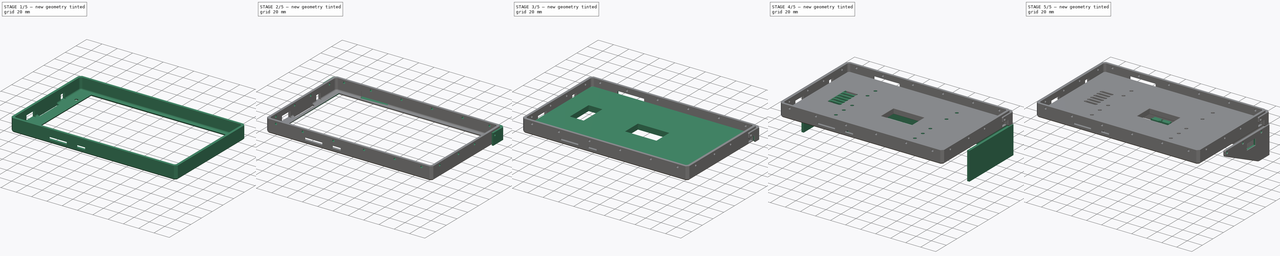
[diagram: build sequence overview — one tinted view per stage of 5, left to right]
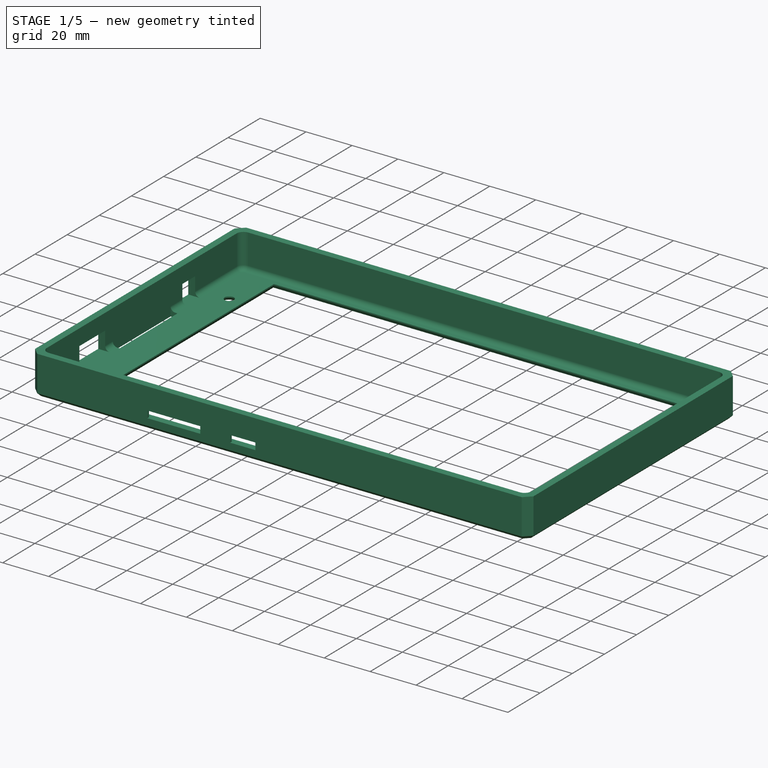
[diagram: stage 1 of 5 — iso view after this stage's code; geometry added in this stage tinted green]
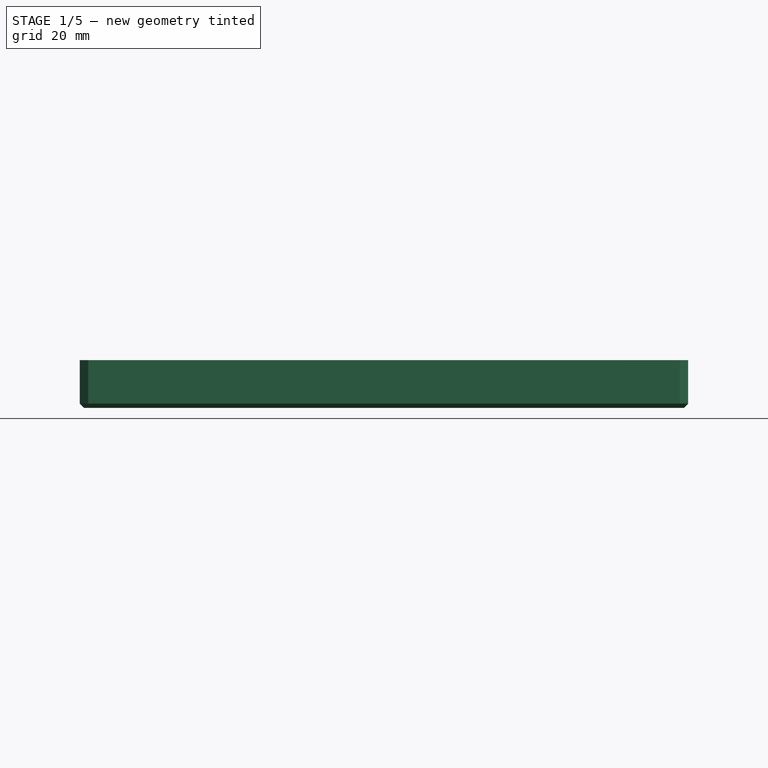
[diagram: stage 1 of 5 — front view after this stage's code; geometry added in this stage tinted green]
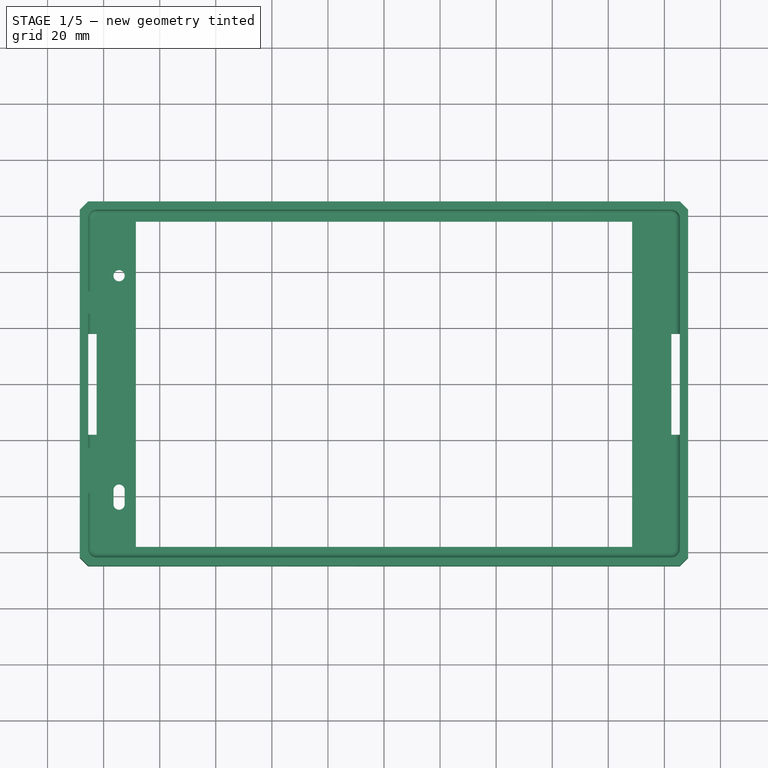
[diagram: stage 1 of 5 — top view after this stage's code; geometry added in this stage tinted green]
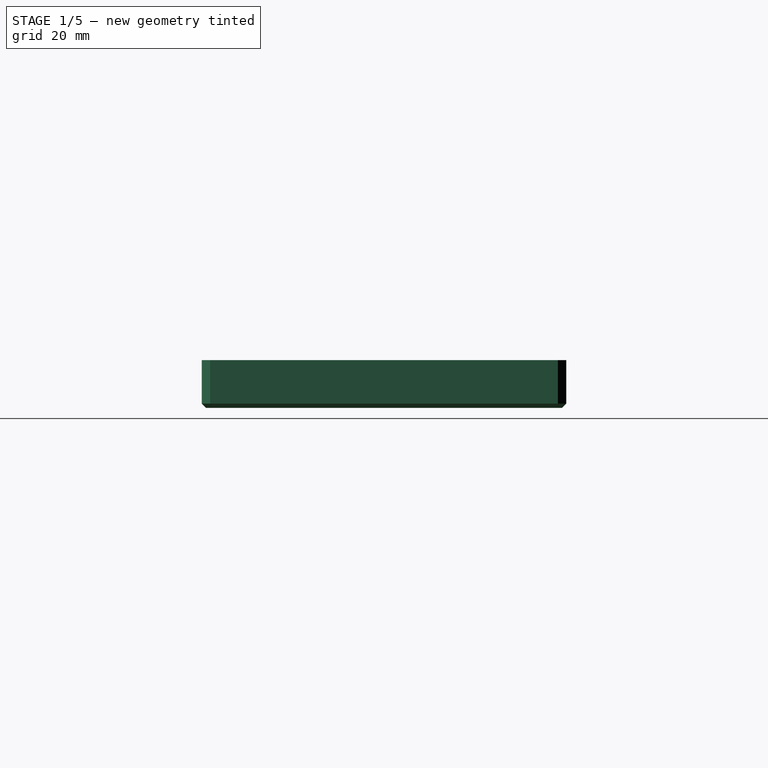
[diagram: stage 1 of 5 — right view after this stage's code; geometry added in this stage tinted green]
FCSTD DOCUMENT  (FreeCAD 0.19R24291 (Git))
Label: tab4-8p-case-slim
License: All rights reserved
LicenseURL: http://en.wikipedia.org/wiki/All_rights_reserved
objects: Sketcher::SketchObject×35, PartDesign::Pocket×27, PartDesign::Chamfer×22, PartDesign::Plane×11, PartDesign::Pad×8, PartDesign::Body×6, Part::Feature×6, PartDesign::Fillet×4, Spreadsheet::Sheet×1
note: 180 computed .brp shape members not serialized (recipe doc carries the construction recipe); baked Part::Feature solids carry a one-line shape summary decoded from their .brp

FEATURE [PartDesign::Body] Body006006  label="power-button"
  Group = -> [Sketch021,Pad003,Chamfer011006]
  Origin = -> Origin009
  Placement = pos=(-9.5,-63.5,4.5) rot=(0,0,1;3.14159rad)
  Tip = -> Chamfer011006
FEATURE [Part::Feature] Body003001  label="side-right001"
  Placement = pos=(0,0,-21) rot=(0,0,1;0rad)
  shape: bbox 41 x 129.5 x 21 mm, 70 faces (baked)
FEATURE [Part::Feature] Body002001  label="side-left001"
  Placement = pos=(0,0,196) rot=(0,0,1;0rad)
  shape: bbox 41 x 129.5 x 21 mm, 98 faces (baked)
FEATURE [Part::Feature] Body004001  label="top001"
  shape: bbox 41 x 34.75 x 175 mm, 153 faces (baked)
FEATURE [Part::Feature] Body005001  label="bottom001"
  Placement = pos=(87.5,-2e-15,12.5) rot=(0.707107,0,-0.707107;3.14159rad)
  shape: bbox 175 x 34.75 x 26 mm, 98 faces (baked)
FEATURE [Sketcher::SketchObject] Sketch
  FullyConstrained = true
  MapMode = 5
  Support = -> [XY_Plane]
  expr: Constraints[8] = <<args>>.tablet_width + 2 * Spreadsheet.case_side_thickness
  expr: Constraints[44] = <<args>>.speaker_width
  expr: Constraints[9] = <<args>>.tablet_height + 2 * Spreadsheet.case_side_thickness
  expr: Constraints[22] = <<args>>.tablet_lr_bezel + Spreadsheet.case_side_thickness
  expr: Constraints[10] = (<<args>>.tablet_width + 2 * Spreadsheet.case_side_thickness) / 2
  expr: Constraints[11] = (<<args>>.tablet_height + 2 * Spreadsheet.case_side_thickness) / 2
  expr: Constraints[54] = <<args>>.tablet_width / 2 - 12 + 1
  expr: Constraints[20] = <<args>>.tablet_tb_bezel + Spreadsheet.case_side_thickness
  expr: Constraints[45] = Spreadsheet.case_side_thickness
  expr: Constraints[21] = <<args>>.tablet_tb_bezel + Spreadsheet.case_side_thickness
  expr: Constraints[23] = <<args>>.tablet_lr_bezel + Spreadsheet.case_side_thickness
  expr: Constraints[43] = <<args>>.speaker_height
  expr: Constraints[46] = Spreadsheet.case_side_thickness
  expr: Constraints[47] = <<args>>.speaker_width / 2
  sketch-geometry (21):
    g0: LineSegment StartX=-108.5 StartY=65 StartZ=0 EndX=108.5 EndY=65 EndZ=0
    g1: LineSegment StartX=108.5 StartY=65 StartZ=0 EndX=108.5 EndY=-65 EndZ=0
    g2: LineSegment StartX=108.5 StartY=-65 StartZ=0 EndX=-108.5 EndY=-65 EndZ=0
    g3: LineSegment StartX=-108.5 StartY=-65 StartZ=0 EndX=-108.5 EndY=65 EndZ=0
    g4: LineSegment StartX=-88.5 StartY=58 StartZ=0 EndX=88.5 EndY=58 EndZ=0
    g5: LineSegment StartX=88.5 StartY=58 StartZ=0 EndX=88.5 EndY=-58 EndZ=0
    g6: LineSegment StartX=88.5 StartY=-58 StartZ=0 EndX=-88.5 EndY=-58 EndZ=0
    g7: LineSegment StartX=-88.5 StartY=-58 StartZ=0 EndX=-88.5 EndY=58 EndZ=0
    g8: LineSegment StartX=-105.5 StartY=18 StartZ=0 EndX=-102.5 EndY=18 EndZ=0
    g9: LineSegment StartX=-102.5 StartY=18 StartZ=0 EndX=-102.5 EndY=-18 EndZ=0
    g10: LineSegment StartX=-102.5 StartY=-18 StartZ=0 EndX=-105.5 EndY=-18 EndZ=0
    g11: LineSegment StartX=-105.5 StartY=-18 StartZ=0 EndX=-105.5 EndY=18 EndZ=0
    g12: LineSegment StartX=105.5 StartY=18 StartZ=0 EndX=102.5 EndY=18 EndZ=0
    g13: LineSegment StartX=102.5 StartY=18 StartZ=0 EndX=102.5 EndY=-18 EndZ=0
    g14: LineSegment StartX=102.5 StartY=-18 StartZ=0 EndX=105.5 EndY=-18 EndZ=0
    g15: LineSegment StartX=105.5 StartY=-18 StartZ=0 EndX=105.5 EndY=18 EndZ=0
    g16: Circle CenterX=-94.5 CenterY=38.75 CenterZ=0 NormalX=0 NormalY=0 NormalZ=1 AngleXU=0 Radius=2
    g17: ArcOfCircle CenterX=-94.5 CenterY=-37.75 CenterZ=0 NormalX=0 NormalY=0 NormalZ=1 AngleXU=0 Radius=2 StartAngle=5e-16 EndAngle=3.14159
    g18: ArcOfCircle CenterX=-94.5 CenterY=-42.75 CenterZ=0 NormalX=0 NormalY=0 NormalZ=1 AngleXU=0 Radius=2 StartAngle=3.14159 EndAngle=6.28319
    g19: LineSegment StartX=-96.5 StartY=-37.75 StartZ=0 EndX=-96.5 EndY=-42.75 EndZ=0
    g20: LineSegment StartX=-92.5 StartY=-37.75 StartZ=0 EndX=-92.5 EndY=-42.75 EndZ=0
  constraints (61):
    c: Coincident(g0,g1)
    c: Coincident(g1,g2)
    c: Coincident(g2,g3)
    c: Coincident(g3,g0)
    c: Horizontal(g0)
    c: Horizontal(g2)
    c: Vertical(g1)
    c: Vertical(g3)
    c: DistanceX(g0,g0) = 217
    c: DistanceY(g3,g3) = 130
    c: DistanceX(g0,g-1) = 108.5
    c: DistanceY(g-1,g0) = 65
    c: Coincident(g4,g5)
    c: Coincident(g5,g6)
    c: Coincident(g6,g7)
    c: Coincident(g7,g4)
    c: Horizontal(g4)
    c: Horizontal(g6)
    c: Vertical(g5)
    c: Vertical(g7)
    c: DistanceY(g4,g0) = 7
    c: DistanceY(g2,g6) = 7
    c: DistanceX(g0,g4) = 20
    c: DistanceX(g5,g1) = 20
    c: Coincident(g8,g9)
    c: Coincident(g9,g10)
    c: Coincident(g10,g11)
    c: Coincident(g11,g8)
    c: Horizontal(g8)
    c: Horizontal(g10)
    c: Vertical(g9)
    c: Vertical(g11)
    c: Coincident(g12,g13)
    c: Coincident(g13,g14)
    c: Coincident(g14,g15)
    c: Coincident(g15,g12)
    c: Horizontal(g12)
    c: Horizontal(g14)
    c: Vertical(g13)
    c: Vertical(g15)
    c: Horizontal(g9,g13)
    c: Horizontal(g8,g12)
    c: Equal(g8,g12)
    c: DistanceX(g8,g8) = 3
    c: DistanceY(g11,g11) = 36
    c: DistanceX(g0,g8) = 3
    c: DistanceX(g12,g0) = 3
    c: DistanceY(g-1,g12) = 18
    c: Tangent(g17,g20) = 1.5708
    c: Tangent(g17,g19) = -1.5708
    c: Tangent(g19,g18) = -1.5708
    c: Tangent(g20,g18) = 1.5708
    c: Vertical(g19)
    c: Equal(g17,g18)
    c: DistanceX(g16,g-1) = 94.5
    c: Radius(g16) = 2
    c: Radius(g17) = 2
    c: Vertical(g16,g17)
    c: DistanceY(g18,g17) = 5
    c: DistanceY(g-1,g16) = 38.75
    c: DistanceY(g17,g-1) = 37.75
FEATURE [PartDesign::Pad] Pad
  Direction = (1,1,1)
  Length = 17
  Length2 = 100
  Profile = -> Sketch
  Type = 0
  expr: Length = Spreadsheet.case_front_thickness + <<args>>.case_pocket_deep + <<args>>.tablet_thickness
FEATURE [Sketcher::SketchObject] Sketch023
  FullyConstrained = true
  MapMode = 5
  Placement = pos=(0,0,17) rot=(0,0,1;0rad)
  Support = -> [Pad]
  expr: Constraints[8] = <<args>>.tablet_width
  expr: Constraints[9] = <<args>>.tablet_width / 2
  expr: Constraints[10] = <<args>>.tablet_height
  expr: Constraints[11] = <<args>>.tablet_height / 2
  sketch-geometry (4):
    g0: LineSegment StartX=-105.5 StartY=62 StartZ=0 EndX=105.5 EndY=62 EndZ=0
    g1: LineSegment StartX=105.5 StartY=62 StartZ=0 EndX=105.5 EndY=-62 EndZ=0
    g2: LineSegment StartX=105.5 StartY=-62 StartZ=0 EndX=-105.5 EndY=-62 EndZ=0
    g3: LineSegment StartX=-105.5 StartY=-62 StartZ=0 EndX=-105.5 EndY=62 EndZ=0
  constraints (12):
    c: Coincident(g0,g1)
    c: Coincident(g1,g2)
    c: Coincident(g2,g3)
    c: Coincident(g3,g0)
    c: Horizontal(g0)
    c: Horizontal(g2)
    c: Vertical(g1)
    c: Vertical(g3)
    c: DistanceX(g0,g0) = 211
    c: DistanceX(g0,g-1) = 105.5
    c: DistanceY(g2,g0) = 124
    c: DistanceY(g-1,g0) = 62
FEATURE [PartDesign::Pocket] Pocket
  BaseFeature = -> Pad
  Length = 15
  Length2 = 100
  Profile = -> Sketch023
  Refine = true
  Type = 0
  expr: Length = <<args>>.tablet_thickness + <<args>>.case_pocket_deep
FEATURE [PartDesign::Fillet] Fillet
  Base = -> Pocket [Edge66,Edge67,Edge69,Edge70]
  BaseFeature = -> Pocket
  Radius = 3
  SupportTransform = false
  expr: Radius = <<args>>.tablet_corner_radius
FEATURE [PartDesign::Chamfer] Chamfer
  Angle = 45
  Base = -> Fillet [Edge40,Edge42,Edge38,Edge37]
  BaseFeature = -> Fillet
  ChamferType = 0
  FlipDirection = false
  Size = 3
  Size2 = 1
  SupportTransform = false
  expr: Size = <<args>>.case_corner_chamfer
FEATURE [PartDesign::Plane] DatumPlane
  AttachmentOffset = pos=(0,0,108.5) rot=(0,0,1;0rad)
  Length = 146.125
  MapMode = 5
  Placement = pos=(108.5,-2.41e-14,2.41e-14) rot=(0.57735,0.57735,0.57735;2.0944rad)
  ResizeMode = 0
  Support = -> [YZ_Plane]
  Width = 66.1245
  expr: .AttachmentOffset.Base.z = <<args>>.tablet_width / 2 + Spreadsheet.case_side_thickness
FEATURE [PartDesign::Plane] DatumPlane001
  AttachmentOffset = pos=(0,0,-108.5) rot=(0,0,1;0rad)
  Length = 146.125
  MapMode = 5
  Placement = pos=(-108.5,2.41e-14,-2.41e-14) rot=(0.57735,0.57735,0.57735;2.0944rad)
  ResizeMode = 0
  Support = -> [YZ_Plane]
  Width = 66.1245
  expr: .AttachmentOffset.Base.z = -(<<args>>.tablet_width / 2 + Spreadsheet.case_side_thickness)
FEATURE [Sketcher::SketchObject] Sketch024
  FullyConstrained = true
  MapMode = 5
  Placement = pos=(-108.5,2.41e-14,-2.41e-14) rot=(0.57735,0.57735,0.57735;2.0944rad)
  Support = -> [DatumPlane001]
  expr: Constraints[21] = Spreadsheet.case_front_thickness
  sketch-geometry (8):
    g0: LineSegment StartX=25.25 StartY=2 StartZ=0 EndX=33.25 EndY=2 EndZ=0
    g1: LineSegment StartX=33.25 StartY=2 StartZ=0 EndX=33.25 EndY=10 EndZ=0
    g2: LineSegment StartX=33.25 StartY=10 StartZ=0 EndX=25.25 EndY=10 EndZ=0
    g3: LineSegment StartX=25.25 StartY=10 StartZ=0 EndX=25.25 EndY=2 EndZ=0
    g4: LineSegment StartX=-22.75 StartY=2 StartZ=0 EndX=-38.75 EndY=2 EndZ=0
    g5: LineSegment StartX=-38.75 StartY=2 StartZ=0 EndX=-38.75 EndY=10 EndZ=0
    g6: LineSegment StartX=-38.75 StartY=10 StartZ=0 EndX=-22.75 EndY=10 EndZ=0
    g7: LineSegment StartX=-22.75 StartY=10 StartZ=0 EndX=-22.75 EndY=2 EndZ=0
  constraints (24):
    c: Coincident(g0,g1)
    c: Coincident(g1,g2)
    c: Coincident(g2,g3)
    c: Coincident(g3,g0)
    c: Horizontal(g0)
    c: Horizontal(g2)
    c: Vertical(g1)
    c: Vertical(g3)
    c: Coincident(g4,g5)
    c: Coincident(g5,g6)
    c: Coincident(g6,g7)
    c: Coincident(g7,g4)
    c: Horizontal(g4)
    c: Horizontal(g6)
    c: Vertical(g5)
    c: Vertical(g7)
    c: DistanceX(g4,g-1) = 22.75
    c: DistanceX(g-1,g0) = 25.25
    c: DistanceX(g2,g2) = 8
    c: DistanceX(g6,g6) = 16
    c: DistanceY(g3,g3) = 8
    c: DistanceY(g-1,g0) = 2
    c: Horizontal(g4,g0)
    c: Horizontal(g6,g2)
FEATURE [PartDesign::Pocket] Pocket001
  BaseFeature = -> Chamfer
  Length = 3
  Length2 = 100
  Profile = -> Sketch024
  Reversed = true
  Type = 0
  expr: Length = Spreadsheet.case_side_thickness
FEATURE [PartDesign::Plane] DatumPlane002
  AttachmentOffset = pos=(0,0,65) rot=(0,0,1;0rad)
  Length = 237.833
  MapMode = 5
  Placement = pos=(0,-65,-1.44e-14) rot=(1,0,0;1.5708rad)
  ResizeMode = 0
  Support = -> [XZ_Plane]
  Width = 70.8327
  expr: .AttachmentOffset.Base.z = <<args>>.tablet_height / 2 + <<args>>.case_side_thickness
FEATURE [Sketcher::SketchObject] Sketch025
  FullyConstrained = true
  MapMode = 5
  Placement = pos=(0,-65,-1.44e-14) rot=(1,0,0;1.5708rad)
  Support = -> [DatumPlane002]
  expr: Constraints[19] = <<args>>.case_front_thickness + 2.5
  expr: Constraints[23] = <<args>>.tablet_width / 2 - 48
  sketch-geometry (8):
    g0: LineSegment StartX=-57.5 StartY=4.5 StartZ=0 EndX=-34.5 EndY=4.5 EndZ=0
    g1: LineSegment StartX=-34.5 StartY=4.5 StartZ=0 EndX=-34.5 EndY=7.5 EndZ=0
    g2: LineSegment StartX=-34.5 StartY=7.5 StartZ=0 EndX=-57.5 EndY=7.5 EndZ=0
    g3: LineSegment StartX=-57.5 StartY=7.5 StartZ=0 EndX=-57.5 EndY=4.5 EndZ=0
    g4: LineSegment StartX=-21.5 StartY=4.5 StartZ=0 EndX=-10.5 EndY=4.5 EndZ=0
    g5: LineSegment StartX=-10.5 StartY=4.5 StartZ=0 EndX=-10.5 EndY=7.5 EndZ=0
    g6: LineSegment StartX=-10.5 StartY=7.5 StartZ=0 EndX=-21.5 EndY=7.5 EndZ=0
    g7: LineSegment StartX=-21.5 StartY=7.5 StartZ=0 EndX=-21.5 EndY=4.5 EndZ=0
  constraints (24):
    c: Coincident(g0,g1)
    c: Coincident(g1,g2)
    c: Coincident(g2,g3)
    c: Coincident(g3,g0)
    c: Horizontal(g0)
    c: Horizontal(g2)
    c: Vertical(g1)
    c: Vertical(g3)
    c: Coincident(g4,g5)
    c: Coincident(g5,g6)
    c: Coincident(g6,g7)
    c: Coincident(g7,g4)
    c: Horizontal(g4)
    c: Horizontal(g6)
    c: Vertical(g5)
    c: Vertical(g7)
    c: Horizontal(g0,g4)
    c: Horizontal(g6,g1)
    c: DistanceY(g3,g3) = 3
    c: DistanceY(g-1,g4) = 4.5
    c: DistanceX(g2,g2) = 23
    c: DistanceX(g1,g6) = 13
    c: DistanceX(g6,g6) = 11
    c: DistanceX(g0,g-1) = 57.5
FEATURE [PartDesign::Pocket] Pocket002
  BaseFeature = -> Pocket001
  Length = 3
  Length2 = 100
  Profile = -> Sketch025
  Type = 0
  expr: Length = <<args>>.case_side_thickness
FEATURE [PartDesign::Plane] DatumPlane003
  AttachmentOffset = pos=(0,0,62) rot=(0,0,1;0rad)
  Length = 237.833
  MapMode = 5
  Placement = pos=(0,-62,-1.38e-14) rot=(1,0,0;1.5708rad)
  ResizeMode = 0
  Support = -> [XZ_Plane]
  Width = 70.8327
  expr: .AttachmentOffset.Base.z = <<args>>.tablet_height / 2
FEATURE [Sketcher::SketchObject] Sketch026
  FullyConstrained = true
  MapMode = 5
  Placement = pos=(0,-62,-1.38e-14) rot=(1,0,0;1.5708rad)
  Support = -> [DatumPlane003]
  expr: Constraints[38] = <<args>>.case_front_thickness + 2.5
  expr: Constraints[39] = <<args>>.tablet_width / 2 - 48
  sketch-geometry (16):
    g0: LineSegment StartX=-59 StartY=7.5 StartZ=0 EndX=-57.5 EndY=7.5 EndZ=0
    g1: LineSegment StartX=-57.5 StartY=7.5 StartZ=0 EndX=-57.5 EndY=4.5 EndZ=0
    g2: LineSegment StartX=-57.5 StartY=4.5 StartZ=0 EndX=-59 EndY=4.5 EndZ=0
    g3: LineSegment StartX=-59 StartY=4.5 StartZ=0 EndX=-59 EndY=7.5 EndZ=0
    g4: LineSegment StartX=-34.5 StartY=7.5 StartZ=0 EndX=-33 EndY=7.5 EndZ=0
    g5: LineSegment StartX=-33 StartY=7.5 StartZ=0 EndX=-33 EndY=4.5 EndZ=0
    g6: LineSegment StartX=-33 StartY=4.5 StartZ=0 EndX=-34.5 EndY=4.5 EndZ=0
    g7: LineSegment StartX=-34.5 StartY=4.5 StartZ=0 EndX=-34.5 EndY=7.5 EndZ=0
    g8: LineSegment StartX=-21.5 StartY=7.5 StartZ=0 EndX=-23 EndY=7.5 EndZ=0
    g9: LineSegment StartX=-23 StartY=7.5 StartZ=0 EndX=-23 EndY=4.5 EndZ=0
    g10: LineSegment StartX=-23 StartY=4.5 StartZ=0 EndX=-21.5 EndY=4.5 EndZ=0
    g11: LineSegment StartX=-21.5 StartY=4.5 StartZ=0 EndX=-21.5 EndY=7.5 EndZ=0
    g12: LineSegment StartX=-10.5 StartY=7.5 StartZ=0 EndX=-9 EndY=7.5 EndZ=0
    g13: LineSegment StartX=-9 StartY=7.5 StartZ=0 EndX=-9 EndY=4.5 EndZ=0
    g14: LineSegment StartX=-9 StartY=4.5 StartZ=0 EndX=-10.5 EndY=4.5 EndZ=0
    g15: LineSegment StartX=-10.5 StartY=4.5 StartZ=0 EndX=-10.5 EndY=7.5 EndZ=0
  constraints (48):
    c: Coincident(g0,g1)
    c: Coincident(g1,g2)
    c: Coincident(g2,g3)
    c: Coincident(g3,g0)
    c: Horizontal(g0)
    c: Horizontal(g2)
    c: Vertical(g1)
    c: Vertical(g3)
    c: Coincident(g4,g5)
    c: Coincident(g5,g6)
    c: Coincident(g6,g7)
    c: Coincident(g7,g4)
    c: Horizontal(g4)
    c: Horizontal(g6)
    c: Vertical(g5)
    c: Vertical(g7)
    c: Coincident(g8,g9)
    c: Coincident(g9,g10)
    c: Coincident(g10,g11)
    c: Coincident(g11,g8)
    c: Horizontal(g8)
    c: Horizontal(g10)
    c: Vertical(g9)
    c: Vertical(g11)
    c: Coincident(g12,g13)
    c: Coincident(g13,g14)
    c: Coincident(g14,g15)
    c: Coincident(g15,g12)
    c: Horizontal(g12)
    c: Horizontal(g14)
    c: Vertical(g13)
    c: Vertical(g15)
    c: Horizontal(g2,g6)
    c: Horizontal(g6,g9)
    c: Horizontal(g9,g14)
    c: Horizontal(g12,g8)
    c: Horizontal(g8,g4)
    c: Horizontal(g4,g0)
    c: DistanceY(g-1,g13) = 4.5
    c: DistanceX(g1,g-1) = 57.5
    c: Equal(g0,g4)
    c: Equal(g4,g8)
    c: Equal(g8,g12)
    c: DistanceX(g0,g0) = 1.5
    c: DistanceY(g3,g3) = 3
    c: DistanceX(g0,g4) = 23
    c: DistanceX(g6,g10) = 13
    c: DistanceX(g8,g12) = 11
FEATURE [PartDesign::Pocket] Pocket003
  BaseFeature = -> Pocket002
  Length = 2
  Length2 = 100
  Profile = -> Sketch026
  Refine = true
  Reversed = true
  Type = 0
FEATURE [PartDesign::Fillet] Fillet001
  Base = -> Pocket003 [Edge61,Edge73,Edge83,Edge79]
  BaseFeature = -> Pocket003
  Radius = 2
  SupportTransform = false
  expr: Radius = <<args>>.tablet_front_radius
FEATURE [PartDesign::Chamfer] Chamfer011007
  Angle = 45
  Base = -> Fillet001 [Edge182]
  BaseFeature = -> Fillet001
  ChamferType = 0
  FlipDirection = false
  Size = 1.5
  Size2 = 1
  SupportTransform = false
FEATURE [PartDesign::Chamfer] Chamfer011008
  Angle = 45
  Base = -> Chamfer011007 [Edge25]
  BaseFeature = -> Chamfer011007
  ChamferType = 0
  FlipDirection = false
  Size = 1.5
  Size2 = 1
  SupportTransform = false
FEATURE [PartDesign::Chamfer] Chamfer011009
  Angle = 45
  Base = -> Chamfer011008 [Edge14,Edge15,Edge17,Edge16]
  BaseFeature = -> Chamfer011008
  ChamferType = 1
  FlipDirection = false
  Size = 1
  Size2 = 1.5
  SupportTransform = false
FEATURE [PartDesign::Body] Body006009  label="sunvisor"
  Group = -> [Sketch040,Pad007,Chamfer011013,DatumPlane009,Sketch041,Pocket014,Sketch042,Pocket015,Sketch043,Pocket016,Sketch044,Pocket017,Chamfer011014,Chamfer011015,Fillet003,Sketch045,Pocket018,Chamfer011020]
  Origin = -> Origin012
  Placement = pos=(0,0,17) rot=(0,0,1;3.14159rad)
  Tip = -> Chamfer011020
  expr: .Placement.Base.z = <<args>>.tablet_thickness + <<args>>.case_front_thickness + <<args>>.case_pocket_deep
FEATURE [Part::Feature] Part__Feature  label="30mm Fan Mockup 3010 v5"
  Placement = pos=(-74,-31.5,17) rot=(0,0,1;1.5708rad)
  shape: bbox 30 x 30 x 10 mm, 196 faces (baked)
FEATURE [Part::Feature] Body006011  label="front001"
  shape: bbox 217 x 130 x 17 mm, 115 faces (baked)
FEATURE [Sketcher::SketchObject] Sketch028
  FullyConstrained = true
  MapMode = 5
  Placement = pos=(-108.5,2.41e-14,-2.41e-14) rot=(0.57735,0.57735,0.57735;2.0944rad)
  Support = -> [DatumPlane001]
  expr: Constraints[0] = <<args>>.tablet_thickness + <<args>>.case_front_thickness + <<args>>.case_pocket_deep - 3.5
  sketch-geometry (4):
    g0: Circle CenterX=-15 CenterY=13.5 CenterZ=0 NormalX=0 NormalY=0 NormalZ=1 AngleXU=0 Radius=1.4
    g1: Circle CenterX=15 CenterY=13.5 CenterZ=0 NormalX=0 NormalY=0 NormalZ=1 AngleXU=0 Radius=1.4
    g2: Circle CenterX=50 CenterY=13.5 CenterZ=0 NormalX=0 NormalY=0 NormalZ=1 AngleXU=0 Radius=1.4
    g3: Circle CenterX=-50 CenterY=13.5 CenterZ=0 NormalX=0 NormalY=0 NormalZ=1 AngleXU=0 Radius=1.4
  constraints (12):
    c: DistanceY(g-1,g0) = 13.5
    c: Radius(g0) = 1.4
    c: Horizontal(g3,g0)
    c: Horizontal(g0,g1)
    c: Horizontal(g1,g2)
    c: Equal(g0,g3)
    c: Equal(g3,g1)
    c: Equal(g1,g2)
    c: DistanceX(g0,g-1) = 15
    c: DistanceX(g-1,g1) = 15
    c: DistanceX(g1,g2) = 35
    c: DistanceX(g3,g0) = 35
FEATURE [Sketcher::SketchObject] Sketch029
  FullyConstrained = true
  MapMode = 5
  Placement = pos=(108.5,-2.41e-14,2.41e-14) rot=(0.57735,0.57735,0.57735;2.0944rad)
  Support = -> [DatumPlane]
  expr: Constraints[11] = <<args>>.tablet_height / 2 - 9.5 + 4
  expr: Constraints[9] = <<args>>.tablet_thickness
  expr: Constraints[8] = <<args>>.case_front_thickness
  sketch-geometry (4):
    g0: LineSegment StartX=48.5 StartY=2 StartZ=0 EndX=56.5 EndY=2 EndZ=0
    g1: LineSegment StartX=56.5 StartY=2 StartZ=0 EndX=56.5 EndY=10 EndZ=0
    g2: LineSegment StartX=56.5 StartY=10 StartZ=0 EndX=48.5 EndY=10 EndZ=0
    g3: LineSegment StartX=48.5 StartY=10 StartZ=0 EndX=48.5 EndY=2 EndZ=0
  constraints (12):
    c: Coincident(g0,g1)
    c: Coincident(g1,g2)
    c: Coincident(g2,g3)
    c: Coincident(g3,g0)
    c: Horizontal(g0)
    c: Horizontal(g2)
    c: Vertical(g1)
    c: Vertical(g3)
    c: DistanceY(g-1,g0) = 2
    c: DistanceY(g3,g3) = 8
    c: DistanceX(g2,g2) = 8
    c: DistanceX(g-1,g0) = 56.5
FEATURE [PartDesign::Chamfer] Chamfer011010
  Angle = 45
  Base = -> Chamfer011009 [Edge13,Edge15,Edge17,Edge11,Edge10,Edge12,Edge14,Edge16]
  BaseFeature = -> Chamfer011009
  ChamferType = 0
  FlipDirection = false
  Size = 1.5
  Size2 = 1
  SupportTransform = false
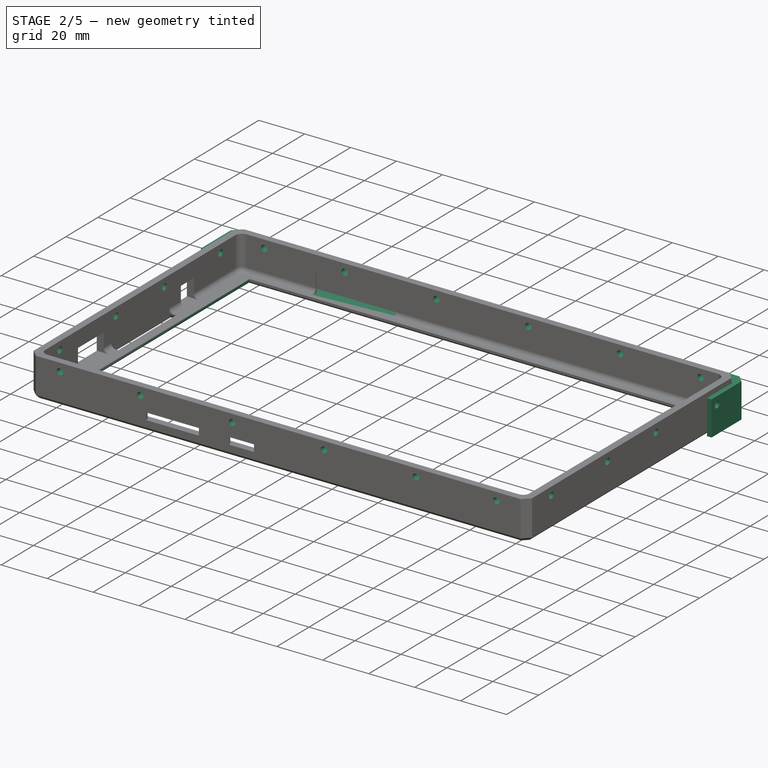
[diagram: stage 2 of 5 — iso view after this stage's code; geometry added in this stage tinted green]
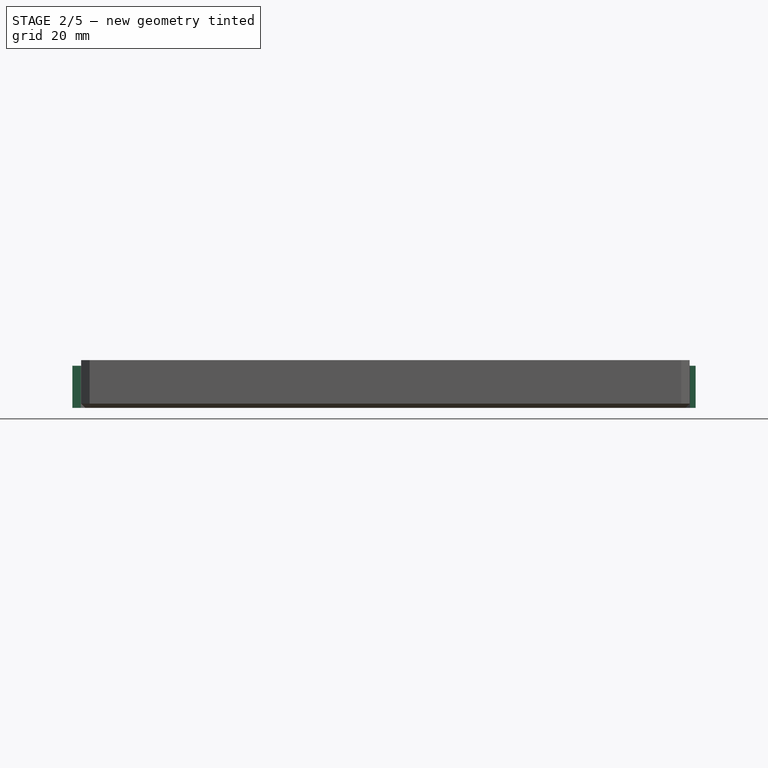
[diagram: stage 2 of 5 — front view after this stage's code; geometry added in this stage tinted green]
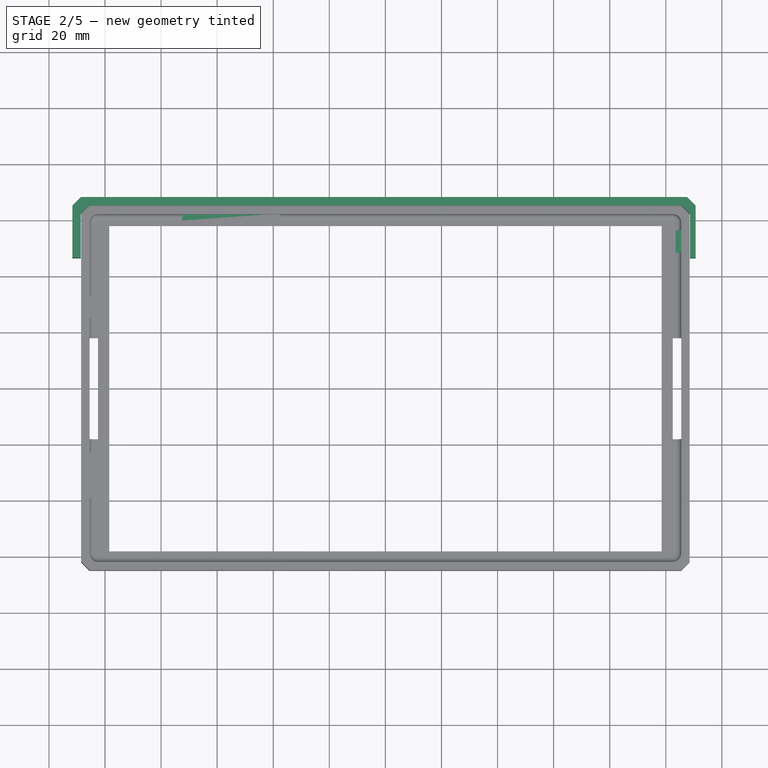
[diagram: stage 2 of 5 — top view after this stage's code; geometry added in this stage tinted green]
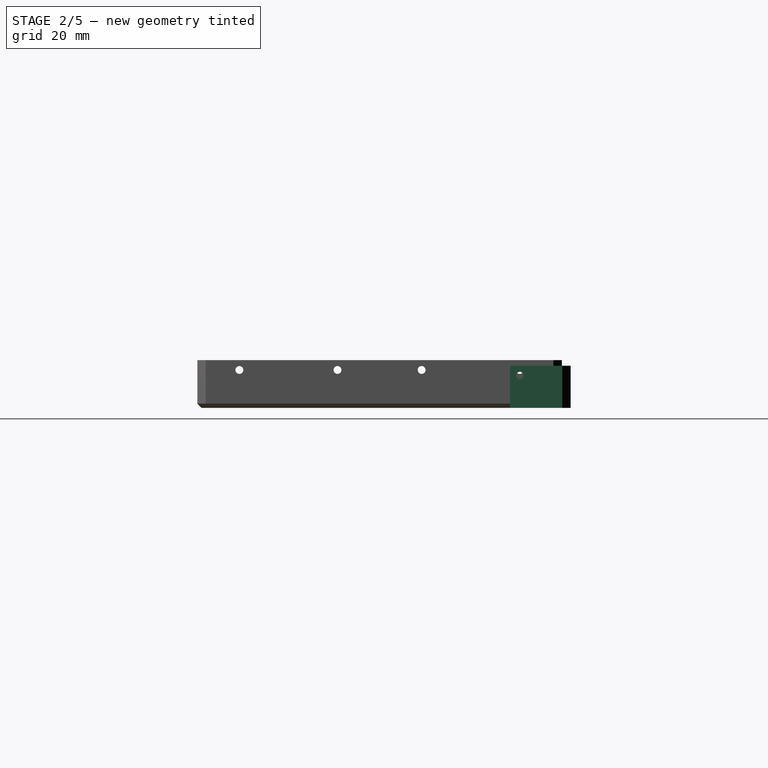
[diagram: stage 2 of 5 — right view after this stage's code; geometry added in this stage tinted green]
FEATURE [Sketcher::SketchObject] Sketch046
  FullyConstrained = true
  MapMode = 5
  Support = -> [XY_Plane013]
  expr: Constraints[19] = (<<args>>.tablet_width + <<args>>.case_side_thickness * 2 + 0.3) / 2
  expr: Constraints[18] = <<args>>.tablet_width + <<args>>.case_side_thickness * 2 + 0.3
  expr: Constraints[17] = <<args>>.tablet_height / 2 + <<args>>.case_side_thickness + 0.15
  sketch-geometry (8):
    g0: LineSegment StartX=-108.65 StartY=46.5 StartZ=0 EndX=-108.65 EndY=65.15 EndZ=0
    g1: LineSegment StartX=-108.65 StartY=65.15 StartZ=0 EndX=108.65 EndY=65.15 EndZ=0
    g2: LineSegment StartX=108.65 StartY=65.15 StartZ=0 EndX=108.65 EndY=46.5 EndZ=0
    g3: LineSegment StartX=108.65 StartY=46.5 StartZ=0 EndX=110.65 EndY=46.5 EndZ=0
    g4: LineSegment StartX=110.65 StartY=46.5 StartZ=0 EndX=110.65 EndY=68.15 EndZ=0
    g5: LineSegment StartX=110.65 StartY=68.15 StartZ=0 EndX=-111.65 EndY=68.15 EndZ=0
    g6: LineSegment StartX=-111.65 StartY=68.15 StartZ=0 EndX=-111.65 EndY=46.5 EndZ=0
    g7: LineSegment StartX=-111.65 StartY=46.5 StartZ=0 EndX=-108.65 EndY=46.5 EndZ=0
  constraints (24):
    c: Vertical(g0)
    c: Coincident(g0,g1)
    c: Horizontal(g1)
    c: Coincident(g1,g2)
    c: Vertical(g2)
    c: Coincident(g2,g3)
    c: Horizontal(g3)
    c: Coincident(g3,g4)
    c: Vertical(g4)
    c: Coincident(g4,g5)
    c: Horizontal(g5)
    c: Coincident(g5,g6)
    c: Vertical(g6)
    c: Coincident(g6,g7)
    c: Coincident(g7,g0)
    c: Horizontal(g7)
    c: Horizontal(g0,g2)
    c: DistanceY(g-1,g0) = 65.15
    c: DistanceX(g1,g1) = 217.3
    c: DistanceX(g0,g-1) = 108.65
    c: DistanceY(g0,g5) = 3
    c: DistanceX(g5,g0) = 3
    c: DistanceX(g1,g4) = 2
    c: DistanceY(g-1,g6) = 46.5
FEATURE [PartDesign::Pad] Pad008
  Direction = (1,1,1)
  Length = 15
  Length2 = 100
  Profile = -> Sketch046
  Type = 0
  expr: Length = <<args>>.case_front_thickness + <<args>>.case_pocket_deep + <<args>>.tablet_thickness - 2
FEATURE [PartDesign::Chamfer] Chamfer011016
  Angle = 45
  Base = -> Pad008 [Edge14,Edge5,Edge17,Edge2]
  BaseFeature = -> Pad008
  ChamferType = 0
  FlipDirection = false
  Size = 3
  Size2 = 1
  SupportTransform = false
  expr: Size = <<args>>.case_corner_chamfer
FEATURE [Sketcher::SketchObject] Sketch047
  FullyConstrained = true
  MapMode = 5
  Placement = pos=(0,0,0) rot=(0.57735,0.57735,0.57735;2.0944rad)
  Support = -> [YZ_Plane013]
  sketch-geometry (1):
    g0: Circle CenterX=50 CenterY=11.5 CenterZ=0 NormalX=0 NormalY=0 NormalZ=1 AngleXU=0 Radius=1.35
  constraints (3):
    c: DistanceX(g-1,g0) = 50
    c: DistanceY(g-1,g0) = 11.5
    c: Radius(g0) = 1.35
FEATURE [PartDesign::Pocket] Pocket019
  BaseFeature = -> Chamfer011016
  Length = 5
  Length2 = 100
  Midplane = true
  Profile = -> Sketch047
  Type = 1
FEATURE [PartDesign::Chamfer] Chamfer011011
  Angle = 45
  Base = -> Chamfer011010 [Edge23,Edge24,Edge25,Edge20,Edge19,Edge18]
  BaseFeature = -> Chamfer011010
  ChamferType = 1
  FlipDirection = false
  Size = 1
  Size2 = 1.5
  SupportTransform = false
FEATURE [PartDesign::Plane] DatumPlane004
  AttachmentOffset = pos=(0,0,-65) rot=(0,0,1;0rad)
  Length = 237.833
  MapMode = 5
  Placement = pos=(0,65,1.44e-14) rot=(1,0,0;1.5708rad)
  ResizeMode = 0
  Support = -> [XZ_Plane]
  Width = 70.8327
  expr: .AttachmentOffset.Base.z = -(<<args>>.tablet_height / 2 + <<args>>.case_side_thickness)
FEATURE [Sketcher::SketchObject] Sketch027
  FullyConstrained = true
  MapMode = 5
  Placement = pos=(0,-65,-1.44e-14) rot=(1,0,0;1.5708rad)
  Support = -> [DatumPlane002]
  expr: Constraints[0] = <<args>>.tablet_thickness + <<args>>.case_front_thickness + <<args>>.case_pocket_deep - 3.5
  sketch-geometry (6):
    g0: Circle CenterX=-95 CenterY=13.5 CenterZ=0 NormalX=0 NormalY=0 NormalZ=1 AngleXU=0 Radius=1.35
    g1: Circle CenterX=95 CenterY=13.5 CenterZ=0 NormalX=0 NormalY=0 NormalZ=1 AngleXU=0 Radius=1.35
    g2: Circle CenterX=-60 CenterY=13.5 CenterZ=0 NormalX=0 NormalY=0 NormalZ=1 AngleXU=0 Radius=1.35
    g3: Circle CenterX=60 CenterY=13.5 CenterZ=0 NormalX=0 NormalY=0 NormalZ=1 AngleXU=0 Radius=1.35
    g4: Circle CenterX=-20 CenterY=13.5 CenterZ=0 NormalX=0 NormalY=0 NormalZ=1 AngleXU=0 Radius=1.35
    g5: Circle CenterX=20 CenterY=13.5 CenterZ=0 NormalX=0 NormalY=0 NormalZ=1 AngleXU=0 Radius=1.35
  constraints (18):
    c: DistanceY(g-1,g3) = 13.5
    c: Radius(g3) = 1.35
    c: Horizontal(g1,g3)
    c: Horizontal(g3,g5)
    c: Horizontal(g5,g4)
    c: Horizontal(g4,g2)
    c: Horizontal(g2,g0)
    c: Equal(g0,g2)
    c: Equal(g2,g4)
    c: Equal(g4,g5)
    c: Equal(g5,g3)
    c: Equal(g3,g1)
    c: DistanceX(g4,g-1) = 20
    c: DistanceX(g-1,g5) = 20
    c: DistanceX(g2,g4) = 40
    c: DistanceX(g0,g2) = 35
    c: DistanceX(g5,g3) = 40
    c: DistanceX(g3,g1) = 35
FEATURE [PartDesign::Pocket] Pocket004
  BaseFeature = -> Chamfer011011
  Length = 5
  Length2 = 100
  Profile = -> Sketch027
  Type = 1
FEATURE [PartDesign::Pocket] Pocket005
  BaseFeature = -> Pocket004
  Length = 5
  Length2 = 100
  Profile = -> Sketch028
  Reversed = true
  Type = 1
FEATURE [PartDesign::Pocket] Pocket006  label="mic"
  BaseFeature = -> Pocket005
  Length = 5
  Length2 = 100
  Profile = -> Sketch029
  Refine = true
  Type = 0
  expr: Length = <<args>>.case_side_thickness + <<args>>.tablet_front_radius
FEATURE [Sketcher::SketchObject] Sketch052
  FullyConstrained = true
  MapMode = 5
  Placement = pos=(0,65,0) rot=(0,0.707107,0.707107;3.14159rad)
  Support = -> [Pocket006]
  expr: Constraints[10] = <<args>>.case_front_thickness
  expr: Constraints[11] = <<args>>.tablet_thickness
  sketch-geometry (4):
    g0: LineSegment StartX=37.5 StartY=2 StartZ=0 EndX=72.5 EndY=2 EndZ=0
    g1: LineSegment StartX=72.5 StartY=2 StartZ=0 EndX=72.5 EndY=10 EndZ=0
    g2: LineSegment StartX=72.5 StartY=10 StartZ=0 EndX=37.5 EndY=10 EndZ=0
    g3: LineSegment StartX=37.5 StartY=10 StartZ=0 EndX=37.5 EndY=2 EndZ=0
  constraints (12):
    c: Coincident(g0,g1)
    c: Coincident(g1,g2)
    c: Coincident(g2,g3)
    c: Coincident(g3,g0)
    c: Horizontal(g0)
    c: Horizontal(g2)
    c: Vertical(g1)
    c: Vertical(g3)
    c: DistanceX(g2,g2) = 35
    c: DistanceX(g-1,g0) = 37.5
    c: DistanceY(g-1,g0) = 2
    c: DistanceY(g3,g3) = 8
FEATURE [PartDesign::Pocket] Pocket024  label="sdcard"
  BaseFeature = -> Pocket006
  Length = 5
  Length2 = 100
  Profile = -> Sketch052
  Type = 0
FEATURE [PartDesign::Body] Body006010  label="bottom"
  Group = -> [Sketch046,Pad008,Chamfer011016,Sketch047,Pocket019,Chamfer011017,Chamfer011018,Sketch048,Pocket020,Sketch051,Pocket023,Chamfer011022,Sketch053,Pocket025,Chamfer011023,Chamfer011024]
  Origin = -> Origin013
  Placement = pos=(0,0,2) rot=(0,0,1;0rad)
  Tip = -> Chamfer011024
FEATURE [PartDesign::Chamfer] Chamfer011025
  Angle = 45
  Base = -> Pocket024 [Edge194,Edge196]
  BaseFeature = -> Pocket024
  ChamferType = 0
  FlipDirection = false
  Size = 2.5
  Size2 = 1
  SupportTransform = false
FEATURE [Sketcher::SketchObject] Sketch054
  ExternalGeometry = -> [Chamfer011025]
  FullyConstrained = true
  MapMode = 5
  Placement = pos=(0,0,0) rot=(1,0,0;3.14159rad)
  Support = -> [Chamfer011025]
  sketch-geometry (4):
    g0: LineSegment StartX=-98.5 StartY=58 StartZ=0 EndX=98.5 EndY=58 EndZ=0
    g1: LineSegment StartX=98.5 StartY=58 StartZ=0 EndX=98.5 EndY=-58 EndZ=0
    g2: LineSegment StartX=98.5 StartY=-58 StartZ=0 EndX=-98.5 EndY=-58 EndZ=0
    g3: LineSegment StartX=-98.5 StartY=-58 StartZ=0 EndX=-98.5 EndY=58 EndZ=0
  constraints (12):
    c: Coincident(g0,g1)
    c: Coincident(g1,g2)
    c: Coincident(g2,g3)
    c: Coincident(g3,g0)
    c: Horizontal(g0)
    c: Horizontal(g2)
    c: Vertical(g1)
    c: Vertical(g3)
    c: Horizontal(g-4,g1)
    c: Horizontal(g-3,g0)
    c: DistanceX(g-7,g0) = 3
    c: DistanceX(g0,g-8) = 3
FEATURE [PartDesign::Pocket] Pocket026
  BaseFeature = -> Chamfer011025
  Length = 5
  Length2 = 100
  Profile = -> Sketch054
  Type = 1
FEATURE [Sketcher::SketchObject] Sketch055
  ExternalGeometry = -> [Pocket026]
  FullyConstrained = true
  MapMode = 5
  Placement = pos=(0,0,0) rot=(1,0,0;3.14159rad)
  Support = -> [Pocket026]
  sketch-geometry (8):
    g0: LineSegment StartX=-98.5 StartY=-58 StartZ=0 EndX=98.5 EndY=-58 EndZ=0
    g1: LineSegment StartX=98.5 StartY=-58 StartZ=0 EndX=98.5 EndY=-59 EndZ=0
    g2: LineSegment StartX=98.5 StartY=-59 StartZ=0 EndX=-98.5 EndY=-59 EndZ=0
    g3: LineSegment StartX=-98.5 StartY=-59 StartZ=0 EndX=-98.5 EndY=-58 EndZ=0
    g4: LineSegment StartX=-98.5 StartY=58 StartZ=0 EndX=98.5 EndY=58 EndZ=0
    g5: LineSegment StartX=98.5 StartY=58 StartZ=0 EndX=98.5 EndY=59 EndZ=0
    g6: LineSegment StartX=98.5 StartY=59 StartZ=0 EndX=-98.5 EndY=59 EndZ=0
    g7: LineSegment StartX=-98.5 StartY=59 StartZ=0 EndX=-98.5 EndY=58 EndZ=0
  constraints (22):
    c: Coincident(g0,g1)
    c: Coincident(g1,g2)
    c: Coincident(g2,g3)
    c: Coincident(g3,g0)
    c: Horizontal(g0)
    c: Horizontal(g2)
    c: Vertical(g1)
    c: Vertical(g3)
    c: Coincident(g0,g-3)
    c: Vertical(g-4,g1)
    c: Horizontal(g-7,g1)
    c: Coincident(g4,g5)
    c: Coincident(g5,g6)
    c: Coincident(g6,g7)
    c: Coincident(g7,g4)
    c: Horizontal(g4)
    c: Horizontal(g6)
    c: Vertical(g5)
    c: Vertical(g7)
    c: Coincident(g4,g-3)
    c: Vertical(g-4,g5)
    c: Horizontal(g-5,g5)
FEATURE [PartDesign::Pad] Pad009
  BaseFeature = -> Pocket026
  Direction = (1,1,1)
  Length = 2
  Length2 = 100
  Profile = -> Sketch055
  Refine = true
  Reversed = true
  Type = 0
FEATURE [PartDesign::Chamfer] Chamfer011026
  Angle = 45
  Base = -> Pad009 [Edge303,Edge309,Edge306,Edge310]
  BaseFeature = -> Pad009
  ChamferType = 0
  FlipDirection = false
  Size = 1
  Size2 = 1
  SupportTransform = false
FEATURE [PartDesign::Body] Body  label="front"
  Group = -> [Sketch,Pad,Sketch023,Pocket,Fillet,Chamfer,DatumPlane,DatumPlane001,Sketch024,Pocket001,DatumPlane002,Sketch025,Pocket002,DatumPlane003,Sketch026,Pocket003,Fillet001,Chamfer011007,Chamfer011008,Chamfer011009,Chamfer011010,Chamfer011011,DatumPlane004,Sketch027,Pocket004,Sketch028,Pocket005,Sketch029,Pocket006,Sketch052,Pocket024,Chamfer011025,Sketch054,Pocket026,Sketch055,Pad009,Chamfer011026]
  Origin = -> Origin
  Tip = -> Chamfer011026
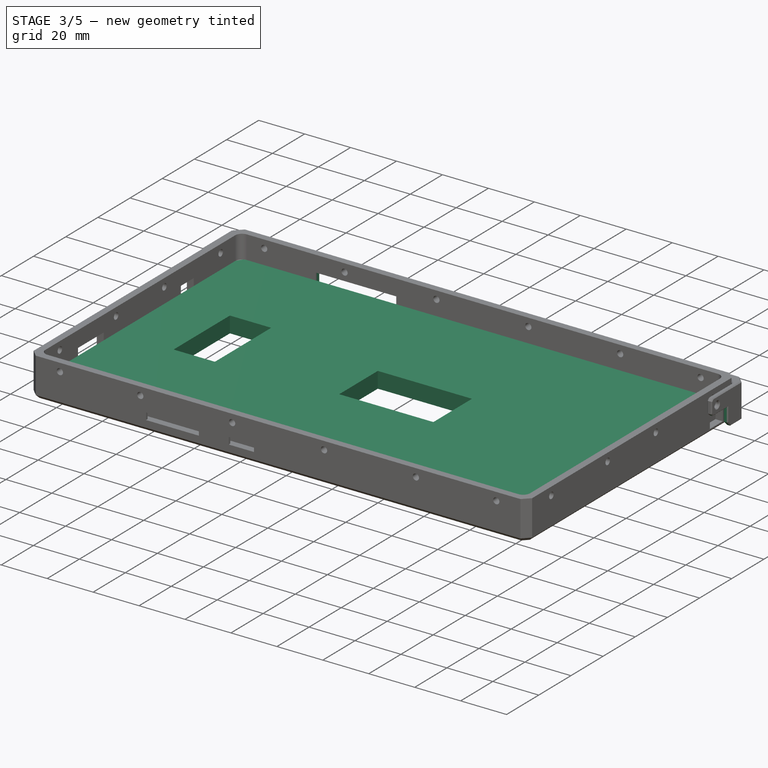
[diagram: stage 3 of 5 — iso view after this stage's code; geometry added in this stage tinted green]
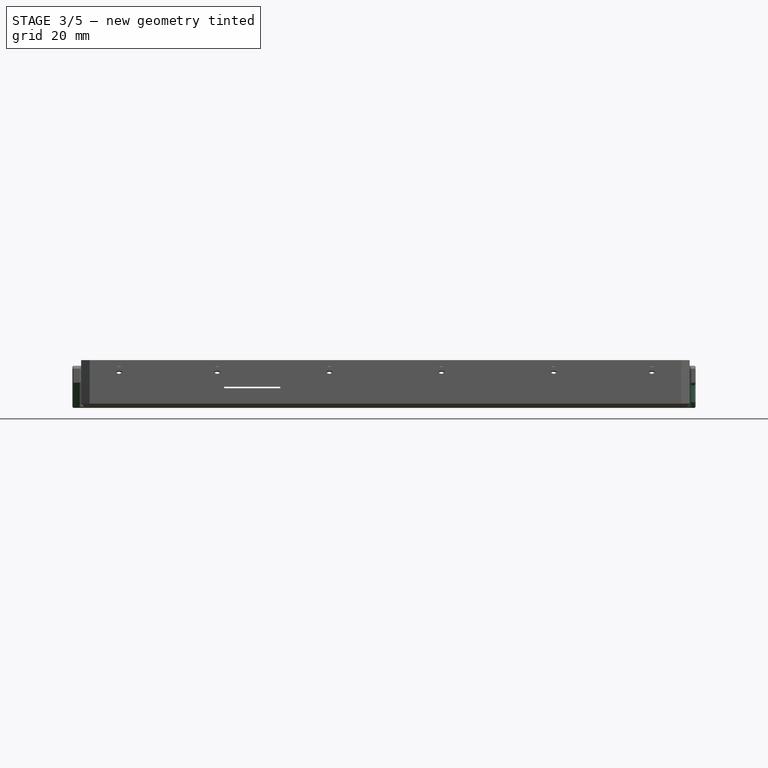
[diagram: stage 3 of 5 — front view after this stage's code; geometry added in this stage tinted green]
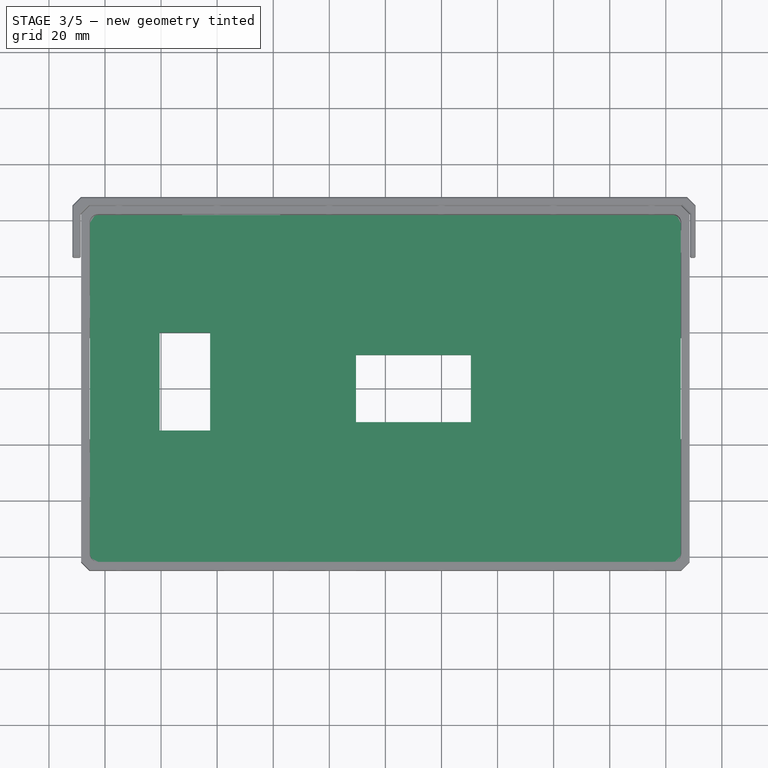
[diagram: stage 3 of 5 — top view after this stage's code; geometry added in this stage tinted green]
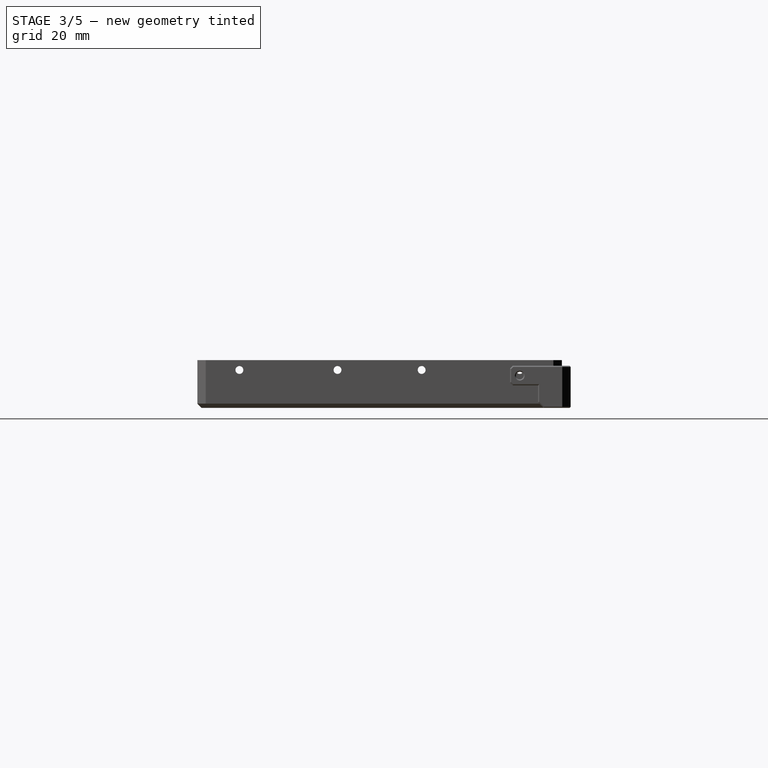
[diagram: stage 3 of 5 — right view after this stage's code; geometry added in this stage tinted green]
FEATURE [Sketcher::SketchObject] Sketch030
  FullyConstrained = true
  MapMode = 5
  Support = -> [XY_Plane011]
  expr: Constraints[11] = <<args>>.tablet_height / 2 - 0.15
  expr: Constraints[10] = <<args>>.tablet_height - 0.3
  expr: Constraints[9] = <<args>>.tablet_width / 2 - 0.15
  expr: Constraints[8] = <<args>>.tablet_width - 0.3
  sketch-geometry (8):
    g0: LineSegment StartX=-105.35 StartY=61.85 StartZ=0 EndX=105.35 EndY=61.85 EndZ=0
    g1: LineSegment StartX=105.35 StartY=61.85 StartZ=0 EndX=105.35 EndY=-61.85 EndZ=0
    g2: LineSegment StartX=105.35 StartY=-61.85 StartZ=0 EndX=-105.35 EndY=-61.85 EndZ=0
    g3: LineSegment StartX=-105.35 StartY=-61.85 StartZ=0 EndX=-105.35 EndY=61.85 EndZ=0
    g4: LineSegment StartX=-80.5 StartY=20 StartZ=0 EndX=-62.5 EndY=20 EndZ=0
    g5: LineSegment StartX=-62.5 StartY=20 StartZ=0 EndX=-62.5 EndY=-15 EndZ=0
    g6: LineSegment StartX=-62.5 StartY=-15 StartZ=0 EndX=-80.5 EndY=-15 EndZ=0
    g7: LineSegment StartX=-80.5 StartY=-15 StartZ=0 EndX=-80.5 EndY=20 EndZ=0
  constraints (24):
    c: Coincident(g0,g1)
    c: Coincident(g1,g2)
    c: Coincident(g2,g3)
    c: Coincident(g3,g0)
    c: Horizontal(g0)
    c: Horizontal(g2)
    c: Vertical(g1)
    c: Vertical(g3)
    c: DistanceX(g0,g0) = 210.7
    c: DistanceX(g0,g-1) = 105.35
    c: DistanceY(g3,g3) = 123.7
    c: DistanceY(g-1,g0) = 61.85
    c: Coincident(g4,g5)
    c: Coincident(g5,g6)
    c: Coincident(g6,g7)
    c: Coincident(g7,g4)
    c: Horizontal(g4)
    c: Horizontal(g6)
    c: Vertical(g5)
    c: Vertical(g7)
    c: DistanceY(g7,g7) = 35
    c: DistanceX(g4,g4) = 18
    c: DistanceX(g5,g-1) = 62.5
    c: DistanceY(g-1,g4) = 20
FEATURE [PartDesign::Pad] Pad005
  Direction = (1,1,1)
  Length = 7
  Length2 = 100
  Profile = -> Sketch030
  Type = 0
  expr: Length = <<args>>.case_pocket_deep
FEATURE [PartDesign::Fillet] Fillet002
  Base = -> Pad005 [Edge1,Edge8,Edge5,Edge2]
  BaseFeature = -> Pad005
  Radius = 3
  SupportTransform = false
  expr: Radius = <<args>>.tablet_corner_radius
FEATURE [Sketcher::SketchObject] Sketch031
  FullyConstrained = true
  MapMode = 5
  Support = -> [XY_Plane011]
  sketch-geometry (4):
    g0: LineSegment StartX=-67.5 StartY=58.5 StartZ=0 EndX=-17.5 EndY=58.5 EndZ=0
    g1: LineSegment StartX=-17.5 StartY=58.5 StartZ=0 EndX=-17.5 EndY=46.5 EndZ=0
    g2: LineSegment StartX=-17.5 StartY=46.5 StartZ=0 EndX=-67.5 EndY=46.5 EndZ=0
    g3: LineSegment StartX=-67.5 StartY=46.5 StartZ=0 EndX=-67.5 EndY=58.5 EndZ=0
  constraints (12):
    c: Coincident(g0,g1)
    c: Coincident(g1,g2)
    c: Coincident(g2,g3)
    c: Coincident(g3,g0)
    c: Horizontal(g0)
    c: Horizontal(g2)
    c: Vertical(g1)
    c: Vertical(g3)
    c: DistanceX(g0,g0) = 50
    c: DistanceY(g1,g1) = 12
    c: DistanceX(g1,g-1) = 17.5
    c: DistanceY(g-1,g1) = 46.5
FEATURE [PartDesign::Pocket] Pocket007
  BaseFeature = -> Fillet002
  Length = 4
  Length2 = 100
  Profile = -> Sketch031
  Reversed = true
  Type = 0
FEATURE [Sketcher::SketchObject] Sketch032
  FullyConstrained = true
  MapMode = 5
  Support = -> [XY_Plane011]
  expr: Constraints[19] = <<args>>.tablet_height / 2
  expr: Constraints[18] = <<args>>.tablet_height
  expr: Constraints[17] = <<args>>.tablet_width / 2
  expr: Constraints[16] = <<args>>.tablet_width
  sketch-geometry (8):
    g0: LineSegment StartX=-10.5 StartY=12 StartZ=0 EndX=30.5 EndY=12 EndZ=0
    g1: LineSegment StartX=30.5 StartY=12 StartZ=0 EndX=30.5 EndY=-12 EndZ=0
    g2: LineSegment StartX=30.5 StartY=-12 StartZ=0 EndX=-10.5 EndY=-12 EndZ=0
    g3: LineSegment StartX=-10.5 StartY=-12 StartZ=0 EndX=-10.5 EndY=12 EndZ=0
    g4: LineSegment StartX=-105.5 StartY=62 StartZ=0 EndX=105.5 EndY=62 EndZ=0
    g5: LineSegment StartX=105.5 StartY=62 StartZ=0 EndX=105.5 EndY=-62 EndZ=0
    g6: LineSegment StartX=105.5 StartY=-62 StartZ=0 EndX=-105.5 EndY=-62 EndZ=0
    g7: LineSegment StartX=-105.5 StartY=-62 StartZ=0 EndX=-105.5 EndY=62 EndZ=0
  constraints (24):
    c: Coincident(g0,g1)
    c: Coincident(g1,g2)
    c: Coincident(g2,g3)
    c: Coincident(g3,g0)
    c: Horizontal(g0)
    c: Horizontal(g2)
    c: Vertical(g1)
    c: Vertical(g3)
    c: Coincident(g4,g5)
    c: Coincident(g5,g6)
    c: Coincident(g6,g7)
    c: Coincident(g7,g4)
    c: Horizontal(g4)
    c: Horizontal(g6)
    c: Vertical(g5)
    c: Vertical(g7)
    c: DistanceX(g4,g4) = 211
    c: DistanceX(g4,g-1) = 105.5
    c: DistanceY(g5,g5) = 124
    c: DistanceY(g-1,g4) = 62
    c: DistanceX(g6,g2) = 95
    c: DistanceX(g1,g5) = 75
    c: DistanceY(g0,g4) = 50
    c: DistanceY(g6,g2) = 50
FEATURE [PartDesign::Pocket] Pocket008
  BaseFeature = -> Pocket007
  Length = 5
  Length2 = 100
  Profile = -> Sketch032
  Reversed = true
  Type = 1
FEATURE [PartDesign::Plane] DatumPlane005
  AttachmentOffset = pos=(0,0,62) rot=(0,0,1;0rad)
  Length = 231.228
  MapMode = 5
  Placement = pos=(0,-62,-1.38e-14) rot=(1,0,0;1.5708rad)
  ResizeMode = 0
  Support = -> [XZ_Plane011]
  Width = 70.528
  expr: .AttachmentOffset.Base.z = <<args>>.tablet_height / 2
FEATURE [PartDesign::Plane] DatumPlane006
  AttachmentOffset = pos=(0,0,-62) rot=(0,0,1;0rad)
  Length = 231.228
  MapMode = 5
  Placement = pos=(0,62,1.38e-14) rot=(1,0,0;1.5708rad)
  ResizeMode = 0
  Support = -> [XZ_Plane011]
  Width = 70.528
  expr: .AttachmentOffset.Base.z = -(<<args>>.tablet_height / 2)
FEATURE [PartDesign::Plane] DatumPlane007
  AttachmentOffset = pos=(0,0,105.5) rot=(0,0,1;0rad)
  Length = 139.429
  MapMode = 5
  Placement = pos=(105.5,-2.34e-14,2.34e-14) rot=(0.57735,0.57735,0.57735;2.0944rad)
  ResizeMode = 0
  Support = -> [YZ_Plane011]
  Width = 65.729
  expr: .AttachmentOffset.Base.z = <<args>>.tablet_width / 2
FEATURE [PartDesign::Plane] DatumPlane008
  AttachmentOffset = pos=(0,0,-105.5) rot=(0,0,1;0rad)
  Length = 139.429
  MapMode = 5
  Placement = pos=(-105.5,2.34e-14,-2.34e-14) rot=(0.57735,0.57735,0.57735;2.0944rad)
  ResizeMode = 0
  Support = -> [YZ_Plane011]
  Width = 65.729
  expr: .AttachmentOffset.Base.z = -(<<args>>.tablet_width / 2)
FEATURE [Sketcher::SketchObject] Sketch033
  FullyConstrained = true
  MapMode = 5
  Placement = pos=(0,62,1.38e-14) rot=(1,0,0;1.5708rad)
  Support = -> [DatumPlane006]
  expr: Constraints[5] = <<args>>.case_pocket_deep / 2
  sketch-geometry (6):
    g0: Circle CenterX=-95 CenterY=3.5 CenterZ=0 NormalX=0 NormalY=0 NormalZ=1 AngleXU=0 Radius=1.7
    g1: Circle CenterX=-60 CenterY=3.5 CenterZ=0 NormalX=0 NormalY=0 NormalZ=1 AngleXU=0 Radius=1.7
    g2: Circle CenterX=-20 CenterY=3.5 CenterZ=0 NormalX=0 NormalY=0 NormalZ=1 AngleXU=0 Radius=1.7
    g3: Circle CenterX=20 CenterY=3.5 CenterZ=0 NormalX=0 NormalY=0 NormalZ=1 AngleXU=0 Radius=1.7
    g4: Circle CenterX=60 CenterY=3.5 CenterZ=0 NormalX=0 NormalY=0 NormalZ=1 AngleXU=0 Radius=1.7
    g5: Circle CenterX=95 CenterY=3.5 CenterZ=0 NormalX=0 NormalY=0 NormalZ=1 AngleXU=0 Radius=1.7
  constraints (18):
    c: Horizontal(g0,g1)
    c: Horizontal(g1,g2)
    c: Horizontal(g2,g3)
    c: Horizontal(g3,g5)
    c: Horizontal(g5,g4)
    c: DistanceY(g-1,g3) = 3.5
    c: Equal(g0,g1)
    c: Equal(g1,g2)
    c: Equal(g2,g3)
    c: Equal(g3,g4)
    c: Equal(g4,g5)
    c: DistanceX(g2,g-1) = 20
    c: DistanceX(g-1,g3) = 20
    c: DistanceX(g3,g4) = 40
    c: DistanceX(g4,g5) = 35
    c: DistanceX(g1,g2) = 40
    c: DistanceX(g0,g1) = 35
    c: Radius(g0) = 1.7
FEATURE [PartDesign::Pocket] Pocket009
  BaseFeature = -> Pocket008
  Length = 10
  Length2 = 100
  Profile = -> Sketch033
  Reversed = true
  Type = 0
FEATURE [PartDesign::Chamfer] Chamfer011017
  Angle = 45
  Base = -> Pocket019 [Edge27,Edge20]
  BaseFeature = -> Pocket019
  ChamferType = 0
  FlipDirection = false
  Size = 1
  Size2 = 1
  SupportTransform = false
FEATURE [PartDesign::Chamfer] Chamfer011018
  Angle = 45
  Base = -> Chamfer011017 [Edge19,Edge9]
  BaseFeature = -> Chamfer011017
  ChamferType = 0
  FlipDirection = false
  Size = 9
  Size2 = 1
  SupportTransform = false
FEATURE [Sketcher::SketchObject] Sketch048
  FullyConstrained = true
  MapMode = 5
  Placement = pos=(0,68.15,0) rot=(0,0.707107,0.707107;3.14159rad)
  Support = -> [Chamfer011018]
  sketch-geometry (6):
    g0: Circle CenterX=-95 CenterY=11.5 CenterZ=0 NormalX=0 NormalY=0 NormalZ=1 AngleXU=0 Radius=1.35
    g1: Circle CenterX=-60 CenterY=11.5 CenterZ=0 NormalX=0 NormalY=0 NormalZ=1 AngleXU=0 Radius=1.35
    g2: Circle CenterX=-20 CenterY=11.5 CenterZ=0 NormalX=0 NormalY=0 NormalZ=1 AngleXU=0 Radius=1.35
    g3: Circle CenterX=20 CenterY=11.5 CenterZ=0 NormalX=0 NormalY=0 NormalZ=1 AngleXU=0 Radius=1.35
    g4: Circle CenterX=60 CenterY=11.5 CenterZ=0 NormalX=0 NormalY=0 NormalZ=1 AngleXU=0 Radius=1.35
    g5: Circle CenterX=95 CenterY=11.5 CenterZ=0 NormalX=0 NormalY=0 NormalZ=1 AngleXU=0 Radius=1.35
  constraints (18):
    c: Horizontal(g0,g1)
    c: Horizontal(g1,g2)
    c: Horizontal(g2,g3)
    c: Horizontal(g3,g4)
    c: Horizontal(g4,g5)
    c: Equal(g0,g1)
    c: Equal(g1,g2)
    c: Equal(g2,g3)
    c: Equal(g3,g4)
    c: Equal(g4,g5)
    c: DistanceY(g-1,g2) = 11.5
    c: DistanceX(g2,g-1) = 20
    c: DistanceX(g-1,g3) = 20
    c: DistanceX(g3,g4) = 40
    c: DistanceX(g4,g5) = 35
    c: DistanceX(g1,g2) = 40
    c: DistanceX(g0,g1) = 35
    c: Radius(g5) = 1.35
FEATURE [PartDesign::Pocket] Pocket020
  BaseFeature = -> Chamfer011018
  Length = 5
  Length2 = 100
  Profile = -> Sketch048
  Type = 1
FEATURE [PartDesign::Body] Body006008  label="back"
  Group = -> [Sketch030,Pad005,Fillet002,Sketch031,Pocket007,Sketch032,Pocket008,DatumPlane005,DatumPlane006,DatumPlane007,DatumPlane008,Sketch033,Pocket009,Sketch034,Pocket010,Sketch036,Pocket011,Sketch037,Pocket012,Sketch038,Pocket013,Sketch039,Pad006,Chamfer011012,Sketch049,Pocket021,Chamfer011021,DatumPlane010,Sketch050,Pocket022]
  Origin = -> Origin011
  Placement = pos=(0,0,10) rot=(0,0,1;0rad)
  Tip = -> Pocket022
  expr: .Placement.Base.z = <<args>>.case_front_thickness + <<args>>.tablet_thickness
FEATURE [Sketcher::SketchObject] Sketch051
  ExternalGeometry = -> [Pocket020]
  FullyConstrained = true
  MapMode = 5
  Placement = pos=(110.65,0,0) rot=(0.57735,0.57735,0.57735;2.0944rad)
  Support = -> [Pocket020]
  sketch-geometry (4):
    g0: LineSegment StartX=47.5 StartY=8 StartZ=0 EndX=56.5 EndY=8 EndZ=0
    g1: LineSegment StartX=56.5 StartY=8 StartZ=0 EndX=56.5 EndY=0 EndZ=0
    g2: LineSegment StartX=56.5 StartY=0 StartZ=0 EndX=55.5 EndY=0 EndZ=0
    g3: LineSegment StartX=55.5 StartY=0 StartZ=0 EndX=47.5 EndY=8 EndZ=0
  constraints (11):
    c: PointOnObject(g0,g-3)
    c: Horizontal(g0)
    c: Coincident(g1,g0)
    c: PointOnObject(g1,g-1)
    c: Vertical(g1)
    c: Coincident(g2,g1)
    c: Coincident(g2,g-3)
    c: Coincident(g3,g2)
    c: Coincident(g3,g0)
    c: DistanceY(g1,g1) = 8
    c: DistanceX(g2,g2) = 1
FEATURE [PartDesign::Pocket] Pocket023
  BaseFeature = -> Pocket020
  Length = 5
  Length2 = 100
  Profile = -> Sketch051
  Type = 0
FEATURE [PartDesign::Chamfer] Chamfer011022
  Angle = 45
  Base = -> Pocket023 [Edge20]
  BaseFeature = -> Pocket023
  ChamferType = 0
  FlipDirection = false
  Size = 2
  Size2 = 1
  SupportTransform = false
FEATURE [Sketcher::SketchObject] Sketch053
  FullyConstrained = true
  MapMode = 5
  Placement = pos=(0,68.15,0) rot=(0,0.707107,0.707107;3.14159rad)
  Support = -> [Chamfer011022]
  expr: Constraints[11] = <<args>>.tablet_thickness
  sketch-geometry (4):
    g0: LineSegment StartX=35 StartY=0 StartZ=0 EndX=75 EndY=0 EndZ=0
    g1: LineSegment StartX=75 StartY=0 StartZ=0 EndX=75 EndY=8 EndZ=0
    g2: LineSegment StartX=75 StartY=8 StartZ=0 EndX=35 EndY=8 EndZ=0
    g3: LineSegment StartX=35 StartY=8 StartZ=0 EndX=35 EndY=0 EndZ=0
  constraints (12):
    c: Coincident(g0,g1)
    c: Coincident(g1,g2)
    c: Coincident(g2,g3)
    c: Coincident(g3,g0)
    c: Horizontal(g0)
    c: Horizontal(g2)
    c: Vertical(g1)
    c: Vertical(g3)
    c: PointOnObject(g0,g-1)
    c: DistanceX(g2,g2) = 40
    c: DistanceX(g-1,g0) = 35
    c: DistanceY(g3,g3) = 8
FEATURE [PartDesign::Pocket] Pocket025
  BaseFeature = -> Chamfer011022
  Length = 5
  Length2 = 100
  Profile = -> Sketch053
  Type = 1
FEATURE [PartDesign::Chamfer] Chamfer011023
  Angle = 45
  Base = -> Pocket025 [Edge68,Edge5]
  BaseFeature = -> Pocket025
  ChamferType = 0
  FlipDirection = false
  Size = 1
  Size2 = 1
  SupportTransform = false
FEATURE [PartDesign::Chamfer] Chamfer011024
  Angle = 45
  Base = -> Chamfer011023 [Edge95,Edge96,Edge73,Edge97,Edge92,Edge93,Edge66,Edge64,Edge34,Edge74,Edge30,Edge41,Edge18,Edge35,Edge33,Edge31,Edge29,Edge24,Edge4,Edge40,Edge19,Edge39,Edge20,Edge38,Edge21,Edge37,Edge22,Edge36,Edge23,Edge51,Edge58,Edge27,Edge44,Edge13,Edge69,Edge71,Edge91,Edge89,Edge90,Edge63,+26 more]
  BaseFeature = -> Chamfer011023
  ChamferType = 0
  FlipDirection = false
  Size = 0.4
  Size2 = 1
  SupportTransform = false
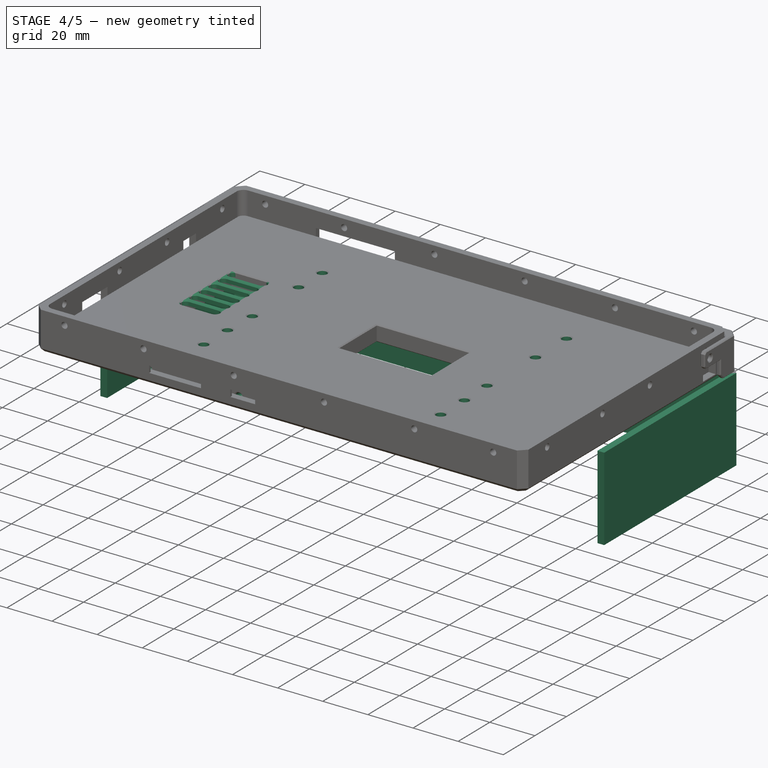
[diagram: stage 4 of 5 — iso view after this stage's code; geometry added in this stage tinted green]
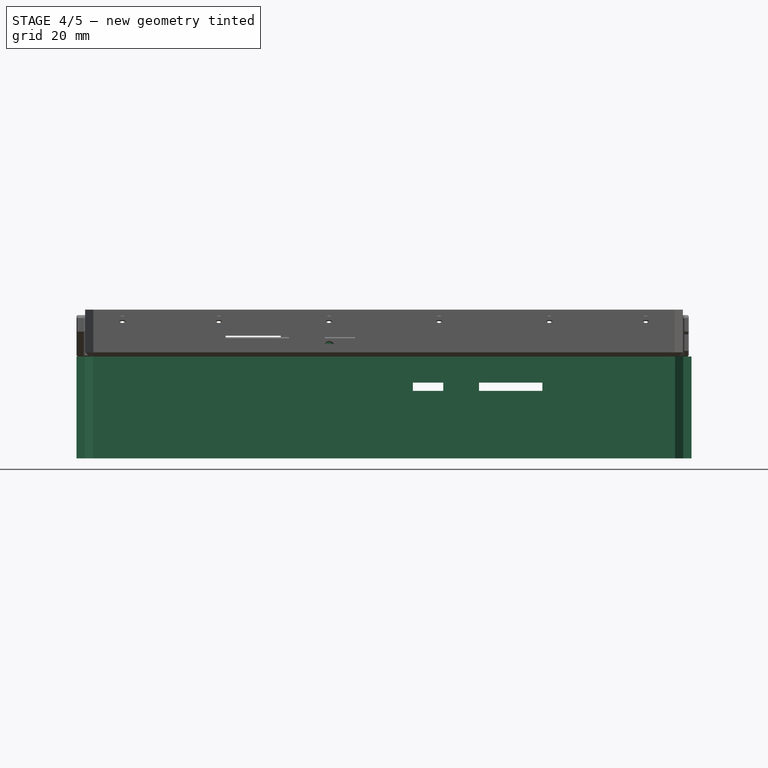
[diagram: stage 4 of 5 — front view after this stage's code; geometry added in this stage tinted green]
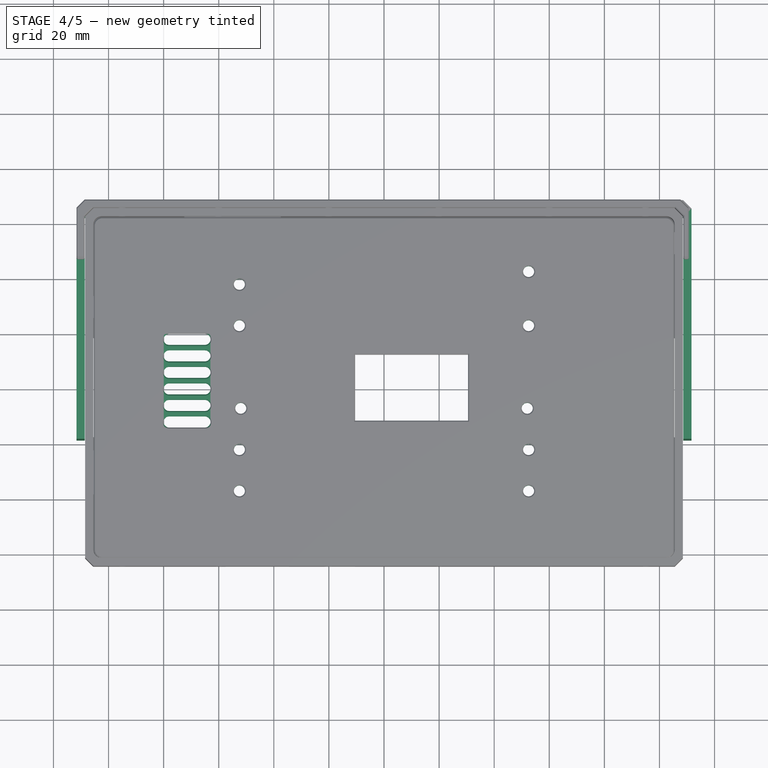
[diagram: stage 4 of 5 — top view after this stage's code; geometry added in this stage tinted green]
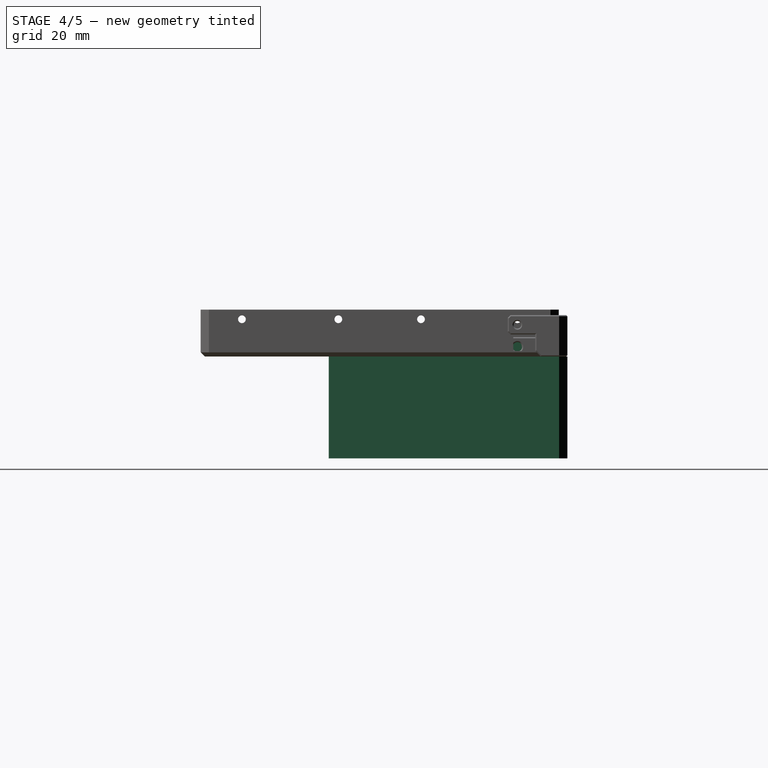
[diagram: stage 4 of 5 — right view after this stage's code; geometry added in this stage tinted green]
FEATURE [Sketcher::SketchObject] Sketch034
  FullyConstrained = true
  MapMode = 5
  Placement = pos=(105.5,-2.34e-14,2.34e-14) rot=(0.57735,0.57735,0.57735;2.0944rad)
  Support = -> [DatumPlane007]
  expr: Constraints[6] = <<args>>.case_pocket_deep / 2
  sketch-geometry (4):
    g0: Circle CenterX=-50 CenterY=3.5 CenterZ=0 NormalX=0 NormalY=0 NormalZ=1 AngleXU=0 Radius=1.7
    g1: Circle CenterX=-15 CenterY=3.5 CenterZ=0 NormalX=0 NormalY=0 NormalZ=1 AngleXU=0 Radius=1.7
    g2: Circle CenterX=15 CenterY=3.5 CenterZ=0 NormalX=0 NormalY=0 NormalZ=1 AngleXU=0 Radius=1.7
    g3: Circle CenterX=50 CenterY=3.5 CenterZ=0 NormalX=0 NormalY=0 NormalZ=1 AngleXU=0 Radius=1.7
  constraints (12):
    c: Horizontal(g3,g2)
    c: Horizontal(g2,g1)
    c: Horizontal(g1,g0)
    c: Equal(g0,g1)
    c: Equal(g1,g2)
    c: Equal(g2,g3)
    c: DistanceY(g-1,g1) = 3.5
    c: DistanceX(g1,g-1) = 15
    c: DistanceX(g-1,g2) = 15
    c: DistanceX(g0,g1) = 35
    c: DistanceX(g2,g3) = 35
    c: Radius(g3) = 1.7
FEATURE [PartDesign::Pocket] Pocket010
  BaseFeature = -> Pocket009
  Length = 10
  Length2 = 100
  Profile = -> Sketch034
  Type = 0
FEATURE [Sketcher::SketchObject] Sketch036
  FullyConstrained = true
  MapMode = 5
  Placement = pos=(0,-62,-1.38e-14) rot=(1,0,0;1.5708rad)
  Support = -> [DatumPlane005]
  expr: Constraints[16] = <<args>>.case_pocket_deep / 2
  sketch-geometry (6):
    g0: Circle CenterX=-95 CenterY=3.5 CenterZ=0 NormalX=0 NormalY=0 NormalZ=1 AngleXU=0 Radius=1.7
    g1: Circle CenterX=-60 CenterY=3.5 CenterZ=0 NormalX=0 NormalY=0 NormalZ=1 AngleXU=0 Radius=1.7
    g2: Circle CenterX=-20 CenterY=3.5 CenterZ=0 NormalX=0 NormalY=0 NormalZ=1 AngleXU=0 Radius=1.7
    g3: Circle CenterX=20 CenterY=3.5 CenterZ=0 NormalX=0 NormalY=0 NormalZ=1 AngleXU=0 Radius=1.7
    g4: Circle CenterX=60 CenterY=3.5 CenterZ=0 NormalX=0 NormalY=0 NormalZ=1 AngleXU=0 Radius=1.7
    g5: Circle CenterX=95 CenterY=3.5 CenterZ=0 NormalX=0 NormalY=0 NormalZ=1 AngleXU=0 Radius=1.7
  constraints (18):
    c: Equal(g0,g1)
    c: Equal(g1,g2)
    c: Equal(g2,g3)
    c: Equal(g3,g4)
    c: Equal(g4,g5)
    c: Horizontal(g0,g1)
    c: Horizontal(g1,g2)
    c: Horizontal(g2,g3)
    c: Horizontal(g3,g4)
    c: Horizontal(g4,g5)
    c: DistanceX(g2,g-1) = 20
    c: DistanceX(g-1,g3) = 20
    c: DistanceX(g3,g4) = 40
    c: DistanceX(g1,g2) = 40
    c: DistanceX(g0,g1) = 35
    c: DistanceX(g4,g5) = 35
    c: DistanceY(g-1,g2) = 3.5
    c: Radius(g5) = 1.7
FEATURE [PartDesign::Pocket] Pocket011
  BaseFeature = -> Pocket010
  Length = 10
  Length2 = 100
  Profile = -> Sketch036
  Type = 0
FEATURE [Sketcher::SketchObject] Sketch037
  FullyConstrained = true
  MapMode = 5
  Placement = pos=(-105.5,2.34e-14,-2.34e-14) rot=(0.57735,0.57735,0.57735;2.0944rad)
  Support = -> [DatumPlane008]
  expr: Constraints[6] = <<args>>.case_pocket_deep / 2
  sketch-geometry (4):
    g0: Circle CenterX=-50 CenterY=3.5 CenterZ=0 NormalX=0 NormalY=0 NormalZ=1 AngleXU=0 Radius=1.7
    g1: Circle CenterX=-15 CenterY=3.5 CenterZ=0 NormalX=0 NormalY=0 NormalZ=1 AngleXU=0 Radius=1.7
    g2: Circle CenterX=15 CenterY=3.5 CenterZ=0 NormalX=0 NormalY=0 NormalZ=1 AngleXU=0 Radius=1.7
    g3: Circle CenterX=50 CenterY=3.5 CenterZ=0 NormalX=0 NormalY=0 NormalZ=1 AngleXU=0 Radius=1.7
  constraints (12):
    c: Equal(g0,g1)
    c: Equal(g1,g2)
    c: Equal(g2,g3)
    c: Horizontal(g0,g1)
    c: Horizontal(g1,g2)
    c: Horizontal(g2,g3)
    c: DistanceY(g-1,g1) = 3.5
    c: DistanceX(g1,g-1) = 15
    c: DistanceX(g-1,g2) = 15
    c: DistanceX(g0,g1) = 35
    c: DistanceX(g2,g3) = 35
    c: Radius(g0) = 1.7
FEATURE [PartDesign::Pocket] Pocket012
  BaseFeature = -> Pocket011
  Length = 10
  Length2 = 100
  Profile = -> Sketch037
  Reversed = true
  Type = 0
FEATURE [Sketcher::SketchObject] Sketch038
  FullyConstrained = false
  MapMode = 5
  Support = -> [XY_Plane011]
  sketch-geometry (8):
    g0: Circle CenterX=-52.5 CenterY=22.5 CenterZ=0 NormalX=0 NormalY=0 NormalZ=1 AngleXU=0 Radius=2
    g1: Circle CenterX=-52.5 CenterY=-22.5 CenterZ=0 NormalX=0 NormalY=0 NormalZ=1 AngleXU=0 Radius=2
    g2: Circle CenterX=52.5 CenterY=22.5 CenterZ=0 NormalX=0 NormalY=0 NormalZ=1 AngleXU=0 Radius=2
    g3: Circle CenterX=52.5 CenterY=-22.5 CenterZ=0 NormalX=0 NormalY=0 NormalZ=1 AngleXU=0 Radius=2
    g4: Circle CenterX=-52.5 CenterY=37.5 CenterZ=0 NormalX=0 NormalY=0 NormalZ=1 AngleXU=0 Radius=2
    g5: Circle CenterX=-52.5 CenterY=-37.5 CenterZ=0 NormalX=0 NormalY=0 NormalZ=1 AngleXU=0 Radius=2
    g6: Circle CenterX=52.5 CenterY=42.1359 CenterZ=0 NormalX=0 NormalY=0 NormalZ=1 AngleXU=0 Radius=2
    g7: Circle CenterX=52.5 CenterY=-37.5 CenterZ=0 NormalX=0 NormalY=0 NormalZ=1 AngleXU=0 Radius=2
  constraints (23):
    c: Horizontal(g0,g2)
    c: Horizontal(g1,g3)
    c: Vertical(g1,g0)
    c: Vertical(g3,g2)
    c: DistanceY(g-1,g0) = 22.5
    c: DistanceY(g1,g-1) = 22.5
    c: DistanceX(g0,g-1) = 52.5
    c: DistanceX(g-1,g2) = 52.5
    c: Vertical(g4,g1)
    c: Vertical(g1,g5)
    c: Vertical(g7,g3)
    c: Vertical(g3,g6)
    c: DistanceY(g5,g1) = 15
    c: Horizontal(g7,g5)
    c: DistanceY(g0,g4) = 15
    c: Equal(g0,g1)
    c: Equal(g1,g2)
    c: Equal(g2,g3)
    c: Equal(g3,g4)
    c: Equal(g4,g5)
    c: Equal(g5,g6)
    c: Equal(g6,g7)
    c: Radius(g6) = 2
FEATURE [PartDesign::Pocket] Pocket013
  BaseFeature = -> Pocket012
  Length = 5
  Length2 = 100
  Profile = -> Sketch038
  Reversed = true
  Type = 1
FEATURE [Sketcher::SketchObject] Sketch039
  ExternalGeometry = -> [Pocket013]
  FullyConstrained = true
  MapMode = 5
  Placement = pos=(0,0,7) rot=(0,0,1;0rad)
  Support = -> [Pocket013]
  sketch-geometry (28):
    g0: LineSegment StartX=-80.5 StartY=20 StartZ=0 EndX=-62.5 EndY=20 EndZ=0
    g1: LineSegment StartX=-62.5 StartY=20 StartZ=0 EndX=-62.5 EndY=-15 EndZ=0
    g2: LineSegment StartX=-62.5 StartY=-15 StartZ=0 EndX=-80.5 EndY=-15 EndZ=0
    g3: LineSegment StartX=-80.5 StartY=-15 StartZ=0 EndX=-80.5 EndY=20 EndZ=0
    g4: ArcOfCircle CenterX=-78 CenterY=17.5 CenterZ=0 NormalX=0 NormalY=0 NormalZ=1 AngleXU=0 Radius=2 StartAngle=1.5708 EndAngle=4.71239
    g5: ArcOfCircle CenterX=-65 CenterY=17.5 CenterZ=0 NormalX=0 NormalY=0 NormalZ=1 AngleXU=0 Radius=2 StartAngle=4.71239 EndAngle=7.85398
    g6: LineSegment StartX=-78 StartY=15.5 StartZ=0 EndX=-65 EndY=15.5 EndZ=0
    g7: LineSegment StartX=-78 StartY=19.5 StartZ=0 EndX=-65 EndY=19.5 EndZ=0
    g8: ArcOfCircle CenterX=-78 CenterY=11.5 CenterZ=0 NormalX=0 NormalY=0 NormalZ=1 AngleXU=0 Radius=2 StartAngle=1.5708 EndAngle=4.71239
    g9: ArcOfCircle CenterX=-65 CenterY=11.5 CenterZ=0 NormalX=0 NormalY=0 NormalZ=1 AngleXU=0 Radius=2 StartAngle=4.71239 EndAngle=7.85398
    g10: LineSegment StartX=-78 StartY=9.5 StartZ=0 EndX=-65 EndY=9.5 EndZ=0
    g11: LineSegment StartX=-78 StartY=13.5 StartZ=0 EndX=-65 EndY=13.5 EndZ=0
    g12: ArcOfCircle CenterX=-78 CenterY=5.5 CenterZ=0 NormalX=0 NormalY=0 NormalZ=1 AngleXU=0 Radius=2 StartAngle=1.5708 EndAngle=4.71239
    g13: ArcOfCircle CenterX=-65 CenterY=5.5 CenterZ=0 NormalX=0 NormalY=0 NormalZ=1 AngleXU=0 Radius=2 StartAngle=4.71239 EndAngle=7.85398
    g14: LineSegment StartX=-78 StartY=3.5 StartZ=0 EndX=-65 EndY=3.5 EndZ=0
    g15: LineSegment StartX=-78 StartY=7.5 StartZ=0 EndX=-65 EndY=7.5 EndZ=0
    g16: ArcOfCircle CenterX=-78 CenterY=-0.5 CenterZ=0 NormalX=0 NormalY=0 NormalZ=1 AngleXU=0 Radius=2 StartAngle=1.5708 EndAngle=4.71239
    g17: ArcOfCircle CenterX=-65 CenterY=-0.5 CenterZ=0 NormalX=0 NormalY=0 NormalZ=1 AngleXU=0 Radius=2 StartAngle=4.71239 EndAngle=7.85398
    g18: LineSegment StartX=-78 StartY=-2.5 StartZ=0 EndX=-65 EndY=-2.5 EndZ=0
    g19: LineSegment StartX=-78 StartY=1.5 StartZ=0 EndX=-65 EndY=1.5 EndZ=0
    g20: ArcOfCircle CenterX=-78 CenterY=-6.5 CenterZ=0 NormalX=0 NormalY=0 NormalZ=1 AngleXU=0 Radius=2 StartAngle=1.5708 EndAngle=4.71239
    g21: ArcOfCircle CenterX=-65 CenterY=-6.5 CenterZ=0 NormalX=0 NormalY=0 NormalZ=1 AngleXU=0 Radius=2 StartAngle=4.71239 EndAngle=7.85398
    g22: LineSegment StartX=-78 StartY=-8.5 StartZ=0 EndX=-65 EndY=-8.5 EndZ=0
    g23: LineSegment StartX=-78 StartY=-4.5 StartZ=0 EndX=-65 EndY=-4.5 EndZ=0
    g24: ArcOfCircle CenterX=-78 CenterY=-12.5 CenterZ=0 NormalX=0 NormalY=0 NormalZ=1 AngleXU=0 Radius=2 StartAngle=1.5708 EndAngle=4.71239
    g25: ArcOfCircle CenterX=-65 CenterY=-12.5 CenterZ=0 NormalX=0 NormalY=0 NormalZ=1 AngleXU=0 Radius=2 StartAngle=4.71239 EndAngle=7.85398
    g26: LineSegment StartX=-78 StartY=-14.5 StartZ=0 EndX=-65 EndY=-14.5 EndZ=0
    g27: LineSegment StartX=-78 StartY=-10.5 StartZ=0 EndX=-65 EndY=-10.5 EndZ=0
  constraints (70):
    c: Coincident(g0,g1)
    c: Coincident(g1,g2)
    c: Coincident(g2,g3)
    c: Coincident(g3,g0)
    c: Horizontal(g0)
    c: Horizontal(g2)
    c: Vertical(g1)
    c: Vertical(g3)
    c: Coincident(g0,g-3)
    c: Coincident(g1,g-4)
    c: Tangent(g4,g7) = 1.5708
    c: Tangent(g4,g6) = -1.5708
    c: Tangent(g6,g5) = -1.5708
    c: Tangent(g7,g5) = 1.5708
    c: Horizontal(g6)
    c: Equal(g4,g5)
    c: Tangent(g8,g11) = 1.5708
    c: Tangent(g8,g10) = -1.5708
    c: Tangent(g10,g9) = -1.5708
    c: Tangent(g11,g9) = 1.5708
    c: Horizontal(g10)
    c: Equal(g8,g9)
    c: Tangent(g12,g15) = 1.5708
    c: Tangent(g12,g14) = -1.5708
    c: Tangent(g14,g13) = -1.5708
    c: Tangent(g15,g13) = 1.5708
    c: Horizontal(g14)
    c: Equal(g12,g13)
    c: Tangent(g16,g19) = 1.5708
    c: Tangent(g16,g18) = -1.5708
    c: Tangent(g18,g17) = -1.5708
    c: Tangent(g19,g17) = 1.5708
    c: Horizontal(g18)
    c: Equal(g16,g17)
    c: Tangent(g20,g23) = 1.5708
    c: Tangent(g20,g22) = -1.5708
    c: Tangent(g22,g21) = -1.5708
    c: Tangent(g23,g21) = 1.5708
    c: Horizontal(g22)
    c: Equal(g20,g21)
    c: Tangent(g24,g27) = 1.5708
    c: Tangent(g24,g26) = -1.5708
    c: Tangent(g26,g25) = -1.5708
    c: Tangent(g27,g25) = 1.5708
    c: Horizontal(g26)
    c: Equal(g24,g25)
    c: Equal(g8,g4)
    c: Equal(g4,g12)
    c: Equal(g12,g16)
    c: Equal(g16,g20)
    c: Equal(g20,g24)
    c: Vertical(g24,g20)
    c: Vertical(g20,g16)
    c: Vertical(g16,g12)
    c: Vertical(g12,g8)
    c: Vertical(g8,g4)
    c: Vertical(g5,g9)
    c: Vertical(g9,g13)
    c: Vertical(g13,g17)
    c: Vertical(g17,g21)
    c: Vertical(g21,g25)
    c: Radius(g5) = 2
    c: DistanceX(g0,g4) = 2.5
    c: DistanceX(g5,g0) = 2.5
    c: DistanceY(g4,g0) = 2.5
    c: DistanceY(g2,g24) = 2.5
    c: DistanceY(g8,g4) = 6
    c: DistanceY(g24,g20) = 6
    c: DistanceY(g12,g8) = 6
    c: DistanceY(g20,g16) = 6
FEATURE [PartDesign::Pad] Pad006
  BaseFeature = -> Pocket013
  Direction = (1,1,1)
  Length = 2
  Length2 = 100
  Profile = -> Sketch039
  Refine = true
  Reversed = true
  Type = 0
FEATURE [PartDesign::Chamfer] Chamfer011012
  Angle = 45
  Base = -> Pad006 [Face2,Face96,Edge5,Edge6,Edge7,Edge8,Edge9,Edge10,Edge72,Edge73,Edge70,Edge71,Edge79,Edge80,Edge81,Edge82,Edge83,Edge84,Edge67,Edge66,Edge65,Edge64]
  BaseFeature = -> Pad006
  ChamferType = 0
  FlipDirection = false
  Size = 0.4
  Size2 = 1
  SupportTransform = false
FEATURE [Sketcher::SketchObject] Sketch040
  FullyConstrained = true
  MapMode = 5
  Support = -> [XY_Plane012]
  expr: Constraints[22] = (<<args>>.tablet_width + <<args>>.case_side_thickness * 2 + 0.3) / 2
  expr: Constraints[21] = <<args>>.tablet_width + <<args>>.case_side_thickness * 2 + 0.3
  expr: Constraints[20] = <<args>>.tablet_height / 2 + <<args>>.case_side_thickness + 0.15
  sketch-geometry (8):
    g0: LineSegment StartX=-108.65 StartY=-18.5 StartZ=0 EndX=-108.65 EndY=65.15 EndZ=0
    g1: LineSegment StartX=-108.65 StartY=65.15 StartZ=0 EndX=108.65 EndY=65.15 EndZ=0
    g2: LineSegment StartX=108.65 StartY=65.15 StartZ=0 EndX=108.65 EndY=-18.5 EndZ=0
    g3: LineSegment StartX=108.65 StartY=-18.5 StartZ=0 EndX=111.65 EndY=-18.5 EndZ=0
    g4: LineSegment StartX=111.65 StartY=-18.5 StartZ=0 EndX=111.65 EndY=68.15 EndZ=0
    g5: LineSegment StartX=111.65 StartY=68.15 StartZ=0 EndX=-111.65 EndY=68.15 EndZ=0
    g6: LineSegment StartX=-111.65 StartY=68.15 StartZ=0 EndX=-111.65 EndY=-18.5 EndZ=0
    g7: LineSegment StartX=-111.65 StartY=-18.5 StartZ=0 EndX=-108.65 EndY=-18.5 EndZ=0
  constraints (24):
    c: Vertical(g0)
    c: Coincident(g0,g1)
    c: Horizontal(g1)
    c: Coincident(g1,g2)
    c: Vertical(g2)
    c: Coincident(g2,g3)
    c: Horizontal(g3)
    c: Coincident(g3,g4)
    c: Vertical(g4)
    c: Coincident(g4,g5)
    c: Horizontal(g5)
    c: Coincident(g5,g6)
    c: Vertical(g6)
    c: Coincident(g6,g7)
    c: Coincident(g7,g0)
    c: Horizontal(g7)
    c: Horizontal(g0,g2)
    c: Equal(g3,g7)
    c: DistanceX(g7,g7) = 3
    c: DistanceY(g0,g5) = 3
    c: DistanceY(g-1,g0) = 65.15
    c: DistanceX(g0,g2) = 217.3
    c: DistanceX(g0,g-1) = 108.65
    c: DistanceY(g0,g-1) = 18.5
FEATURE [PartDesign::Pad] Pad007
  Direction = (1,1,1)
  Length = 37
  Length2 = 100
  Profile = -> Sketch040
  Reversed = true
  Type = 0
  expr: Length = <<args>>.tablet_thickness + <<args>>.case_front_thickness + <<args>>.case_pocket_deep + <<args>>.visor_height
FEATURE [PartDesign::Chamfer] Chamfer011013
  Angle = 45
  Base = -> Pad007 [Edge2,Edge5,Edge14,Edge17]
  BaseFeature = -> Pad007
  ChamferType = 0
  FlipDirection = false
  Size = 3
  Size2 = 1
  SupportTransform = false
  expr: Size = <<args>>.case_corner_chamfer
FEATURE [PartDesign::Plane] DatumPlane009
  AttachmentOffset = pos=(0,0,-56.85) rot=(0,0,1;0rad)
  Length = 246.833
  MapMode = 5
  Placement = pos=(0,56.85,1.26e-14) rot=(1,0,0;1.5708rad)
  ResizeMode = 0
  Support = -> [XZ_Plane012]
  Width = 85.5326
  expr: .AttachmentOffset.Base.z = -<<args>>.tablet_height / 2 + <<args>>.case_side_thickness + 0.15 + 2
FEATURE [Sketcher::SketchObject] Sketch041
  FullyConstrained = true
  MapMode = 5
  Placement = pos=(0,56.85,1.26e-14) rot=(1,0,0;1.5708rad)
  Support = -> [DatumPlane009]
  expr: Constraints[22] = <<args>>.case_front_thickness + 2.5 + 5
  expr: Constraints[21] = <<args>>.tablet_width / 2 - 48
  sketch-geometry (8):
    g0: LineSegment StartX=10.5 StartY=-9.5 StartZ=0 EndX=21.5 EndY=-9.5 EndZ=0
    g1: LineSegment StartX=21.5 StartY=-9.5 StartZ=0 EndX=21.5 EndY=-12.5 EndZ=0
    g2: LineSegment StartX=21.5 StartY=-12.5 StartZ=0 EndX=10.5 EndY=-12.5 EndZ=0
    g3: LineSegment StartX=10.5 StartY=-12.5 StartZ=0 EndX=10.5 EndY=-9.5 EndZ=0
    g4: LineSegment StartX=34.5 StartY=-9.5 StartZ=0 EndX=57.5 EndY=-9.5 EndZ=0
    g5: LineSegment StartX=57.5 StartY=-9.5 StartZ=0 EndX=57.5 EndY=-12.5 EndZ=0
    g6: LineSegment StartX=57.5 StartY=-12.5 StartZ=0 EndX=34.5 EndY=-12.5 EndZ=0
    g7: LineSegment StartX=34.5 StartY=-12.5 StartZ=0 EndX=34.5 EndY=-9.5 EndZ=0
  constraints (24):
    c: Coincident(g0,g1)
    c: Coincident(g1,g2)
    c: Coincident(g2,g3)
    c: Coincident(g3,g0)
    c: Horizontal(g0)
    c: Horizontal(g2)
    c: Vertical(g1)
    c: Vertical(g3)
    c: Coincident(g4,g5)
    c: Coincident(g5,g6)
    c: Coincident(g6,g7)
    c: Coincident(g7,g4)
    c: Horizontal(g4)
    c: Horizontal(g6)
    c: Vertical(g5)
    c: Vertical(g7)
    c: Horizontal(g6,g1)
    c: Horizontal(g0,g4)
    c: DistanceX(g0,g0) = 11
    c: DistanceX(g0,g4) = 13
    c: DistanceX(g4,g4) = 23
    c: DistanceX(g-1,g4) = 57.5
    c: DistanceY(g0,g-1) = 9.5
    c: DistanceY(g3,g3) = 3
FEATURE [PartDesign::Pocket] Pocket014
  BaseFeature = -> Chamfer011013
  Length = 5
  Length2 = 100
  Profile = -> Sketch041
  Type = 1
FEATURE [Sketcher::SketchObject] Sketch049
  FullyConstrained = true
  MapMode = 5
  Support = -> [XY_Plane011]
  expr: Constraints[1] = 45 / 2 - 15
  sketch-geometry (2):
    g0: Circle CenterX=-52 CenterY=-7.5 CenterZ=0 NormalX=0 NormalY=0 NormalZ=1 AngleXU=0 Radius=2
    g1: Circle CenterX=52 CenterY=-7.5 CenterZ=0 NormalX=0 NormalY=0 NormalZ=1 AngleXU=0 Radius=2
  constraints (6):
    c: Horizontal(g0,g1)
    c: DistanceY(g0,g-1) = 7.5
    c: DistanceX(g0,g-1) = 52
    c: DistanceX(g-1,g1) = 52
    c: Radius(g1) = 2
    c: Equal(g1,g0)
FEATURE [PartDesign::Pocket] Pocket021
  BaseFeature = -> Chamfer011012
  Length = 5
  Length2 = 100
  Profile = -> Sketch049
  Reversed = true
  Type = 1
FEATURE [PartDesign::Chamfer] Chamfer011021
  Angle = 45
  Base = -> Pocket021 [Edge94,Edge61,Edge54,Edge83]
  BaseFeature = -> Pocket021
  ChamferType = 0
  FlipDirection = false
  Size = 0.4
  Size2 = 1
  SupportTransform = false
FEATURE [PartDesign::Plane] DatumPlane010
  AttachmentOffset = pos=(0,0,1) rot=(0,0,1;0rad)
  Length = 242.988
  MapMode = 5
  Placement = pos=(0,0,1) rot=(0,0,1;0rad)
  ResizeMode = 0
  Support = -> [XY_Plane011]
  Width = 155.988
FEATURE [Sketcher::SketchObject] Sketch050
  FullyConstrained = true
  MapMode = 5
  Placement = pos=(0,0,1) rot=(0,0,1;0rad)
  Support = -> [DatumPlane010]
  sketch-geometry (34):
    g0: GeomPoint X=-52 Y=0 Z=0
    g1: GeomPoint X=52 Y=0 Z=0
    g2: LineSegment StartX=-59.5 StartY=40 StartZ=0 EndX=-60 EndY=40 EndZ=0
    g3: LineSegment StartX=-60 StartY=40 StartZ=0 EndX=-60 EndY=-50 EndZ=0
    g4: LineSegment StartX=-60 StartY=-50 StartZ=0 EndX=-59.5 EndY=-50 EndZ=0
    g5: LineSegment StartX=-59.5 StartY=-50 StartZ=0 EndX=-59.5 EndY=40 EndZ=0
    g6: LineSegment StartX=-44 StartY=40 StartZ=0 EndX=-44.5 EndY=40 EndZ=0
    g7: LineSegment StartX=-44.5 StartY=40 StartZ=0 EndX=-44.5 EndY=-50 EndZ=0
    g8: LineSegment StartX=-44.5 StartY=-50 StartZ=0 EndX=-44 EndY=-50 EndZ=0
    g9: LineSegment StartX=-44 StartY=-50 StartZ=0 EndX=-44 EndY=40 EndZ=0
    g10: LineSegment StartX=44.5 StartY=40 StartZ=0 EndX=44 EndY=40 EndZ=0
    g11: LineSegment StartX=44 StartY=40 StartZ=0 EndX=44 EndY=-50 EndZ=0
    g12: LineSegment StartX=44 StartY=-50 StartZ=0 EndX=44.5 EndY=-50 EndZ=0
    g13: LineSegment StartX=44.5 StartY=-50 StartZ=0 EndX=44.5 EndY=40 EndZ=0
    g14: LineSegment StartX=60 StartY=40 StartZ=0 EndX=60.5 EndY=40 EndZ=0
    g15: LineSegment StartX=60.5 StartY=40 StartZ=0 EndX=60.5 EndY=-50 EndZ=0
    g16: LineSegment StartX=60.5 StartY=-50 StartZ=0 EndX=60 EndY=-50 EndZ=0
    g17: LineSegment StartX=60 StartY=-50 StartZ=0 EndX=60 EndY=40 EndZ=0
    g18: LineSegment StartX=-34 StartY=19 StartZ=0 EndX=34.5 EndY=19 EndZ=0
    g19: LineSegment StartX=34.5 StartY=19 StartZ=0 EndX=34.5 EndY=19.5 EndZ=0
    g20: LineSegment StartX=34.5 StartY=19.5 StartZ=0 EndX=-34 EndY=19.5 EndZ=0
    g21: LineSegment StartX=-34 StartY=19.5 StartZ=0 EndX=-34 EndY=19 EndZ=0
    g22: LineSegment StartX=-34 StartY=-21 StartZ=0 EndX=34.5 EndY=-21 EndZ=0
    g23: LineSegment StartX=34.5 StartY=-21 StartZ=0 EndX=34.5 EndY=-20.5 EndZ=0
    g24: LineSegment StartX=34.5 StartY=-20.5 StartZ=0 EndX=-34 EndY=-20.5 EndZ=0
    g25: LineSegment StartX=-34 StartY=-20.5 StartZ=0 EndX=-34 EndY=-21 EndZ=0
    g26: LineSegment StartX=-34 StartY=40 StartZ=0 EndX=34.5 EndY=40 EndZ=0
    g27: LineSegment StartX=34.5 StartY=40 StartZ=0 EndX=34.5 EndY=39.5 EndZ=0
    g28: LineSegment StartX=34.5 StartY=39.5 StartZ=0 EndX=-34 EndY=39.5 EndZ=0
    g29: LineSegment StartX=-34 StartY=39.5 StartZ=0 EndX=-34 EndY=40 EndZ=0
    g30: LineSegment StartX=-34 StartY=-50 StartZ=0 EndX=34.5 EndY=-50 EndZ=0
    g31: LineSegment StartX=34.5 StartY=-50 StartZ=0 EndX=34.5 EndY=-50.5 EndZ=0
    g32: LineSegment StartX=34.5 StartY=-50.5 StartZ=0 EndX=-34 EndY=-50.5 EndZ=0
    g33: LineSegment StartX=-34 StartY=-50.5 StartZ=0 EndX=-34 EndY=-50 EndZ=0
  constraints (100):
    c: PointOnObject(g0,g-1)
    c: PointOnObject(g1,g-1)
    c: DistanceX(g-1,g1) = 52
    c: DistanceX(g0,g-1) = 52
    c: Coincident(g2,g3)
    c: Coincident(g3,g4)
    c: Coincident(g4,g5)
    c: Coincident(g5,g2)
    c: Horizontal(g2)
    c: Horizontal(g4)
    c: Vertical(g3)
    c: Vertical(g5)
    c: Coincident(g6,g7)
    c: Coincident(g7,g8)
    c: Coincident(g8,g9)
    c: Coincident(g9,g6)
    c: Horizontal(g6)
    c: Horizontal(g8)
    c: Vertical(g7)
    c: Vertical(g9)
    c: Coincident(g10,g11)
    c: Coincident(g11,g12)
    c: Coincident(g12,g13)
    c: Coincident(g13,g10)
    c: Horizontal(g10)
    c: Horizontal(g12)
    c: Vertical(g11)
    c: Vertical(g13)
    c: Coincident(g14,g15)
    c: Coincident(g15,g16)
    c: Coincident(g16,g17)
    c: Coincident(g17,g14)
    c: Horizontal(g14)
    c: Horizontal(g16)
    c: Vertical(g15)
    c: Vertical(g17)
    c: Horizontal(g2,g6)
    c: Horizontal(g6,g10)
    c: Horizontal(g10,g14)
    c: Horizontal(g3,g7)
    c: Horizontal(g7,g11)
    c: Horizontal(g11,g15)
    c: Equal(g4,g8)
    c: Equal(g8,g12)
    c: Equal(g12,g16)
    c: DistanceX(g16,g16) = 0.5
    c: DistanceX(g1,g16) = 8
    c: DistanceX(g11,g1) = 8
    c: DistanceX(g3,g0) = 8
    c: DistanceX(g0,g8) = 8
    c: DistanceY(g4,g0) = 50
    c: DistanceY(g0,g2) = 40
    c: Coincident(g18,g19)
    c: Coincident(g19,g20)
    c: Coincident(g20,g21)
    c: Coincident(g21,g18)
    c: Horizontal(g18)
    c: Horizontal(g20)
    c: Vertical(g19)
    c: Vertical(g21)
    c: Coincident(g22,g23)
    c: Coincident(g23,g24)
    c: Coincident(g24,g25)
    c: Coincident(g25,g22)
    c: Horizontal(g22)
    c: Horizontal(g24)
    c: Vertical(g23)
    c: Vertical(g25)
    c: Coincident(g26,g27)
    c: Coincident(g27,g28)
    c: Coincident(g28,g29)
    c: Coincident(g29,g26)
    c: Horizontal(g26)
    c: Horizontal(g28)
    c: Vertical(g27)
    c: Vertical(g29)
    c: Coincident(g30,g31)
    c: Coincident(g31,g32)
    c: Coincident(g32,g33)
    c: Coincident(g33,g30)
    c: Horizontal(g30)
    c: Horizontal(g32)
    c: Vertical(g31)
    c: Vertical(g33)
    c: Vertical(g30,g24)
    c: Vertical(g24,g20)
    c: Vertical(g20,g28)
    c: Vertical(g27,g19)
    c: Vertical(g19,g23)
    c: Vertical(g23,g31)
    c: Equal(g33,g25)
    c: Equal(g25,g21)
    c: Equal(g21,g29)
    c: DistanceY(g29,g29) = 0.5
    c: Horizontal(g26,g6)
    c: Horizontal(g8,g30)
    c: DistanceX(g8,g30) = 10
    c: DistanceX(g30,g12) = 10
    c: DistanceY(g32,g24) = 30
    c: DistanceY(g20,g28) = 20
FEATURE [PartDesign::Pocket] Pocket022
  BaseFeature = -> Chamfer011021
  Length = 5
  Length2 = 100
  Profile = -> Sketch050
  Reversed = true
  Type = 0
  expr: Length = <<args>>.case_pocket_deep - 2
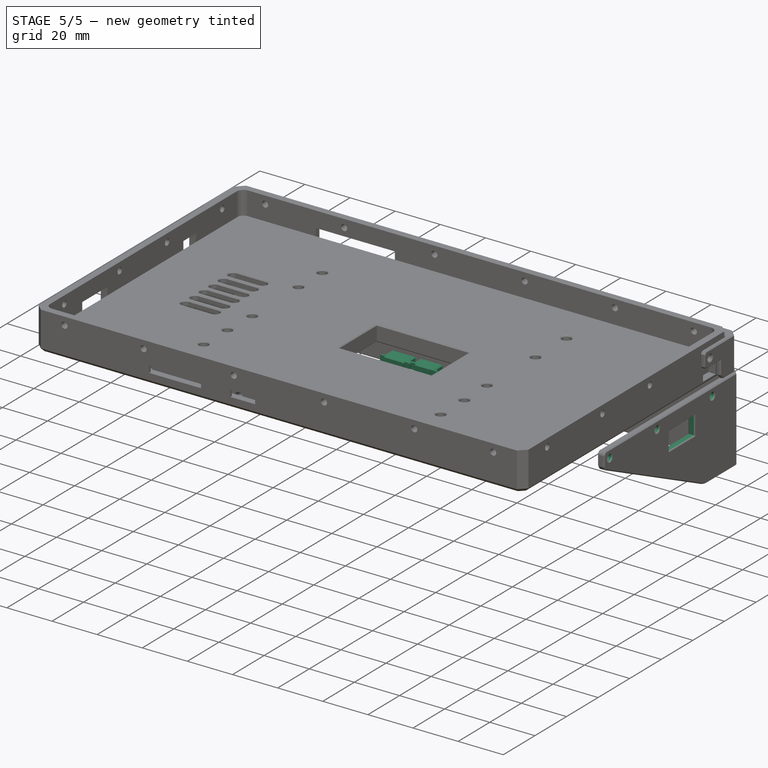
[diagram: stage 5 of 5 — iso view after this stage's code; geometry added in this stage tinted green]
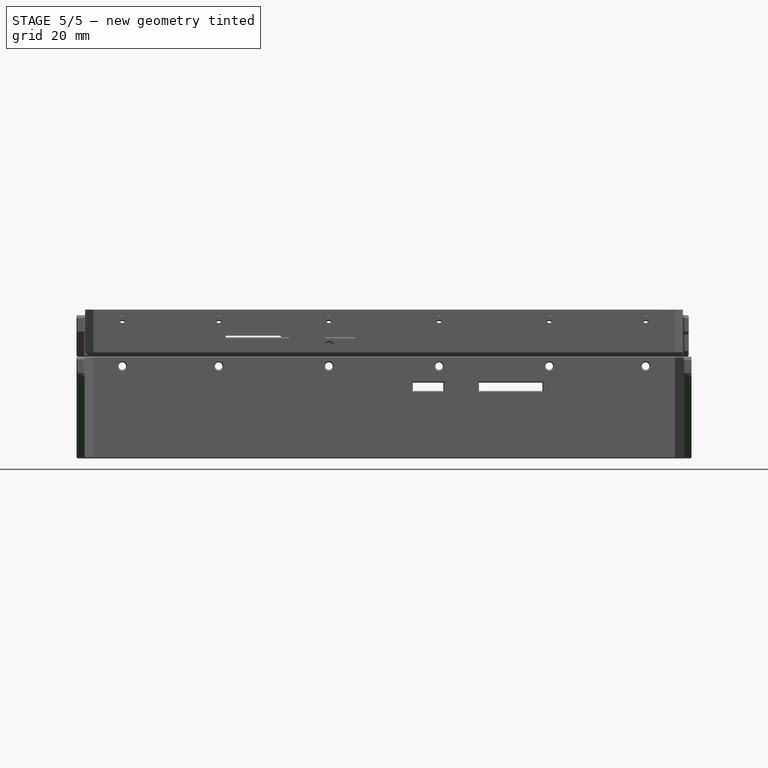
[diagram: stage 5 of 5 — front view after this stage's code; geometry added in this stage tinted green]
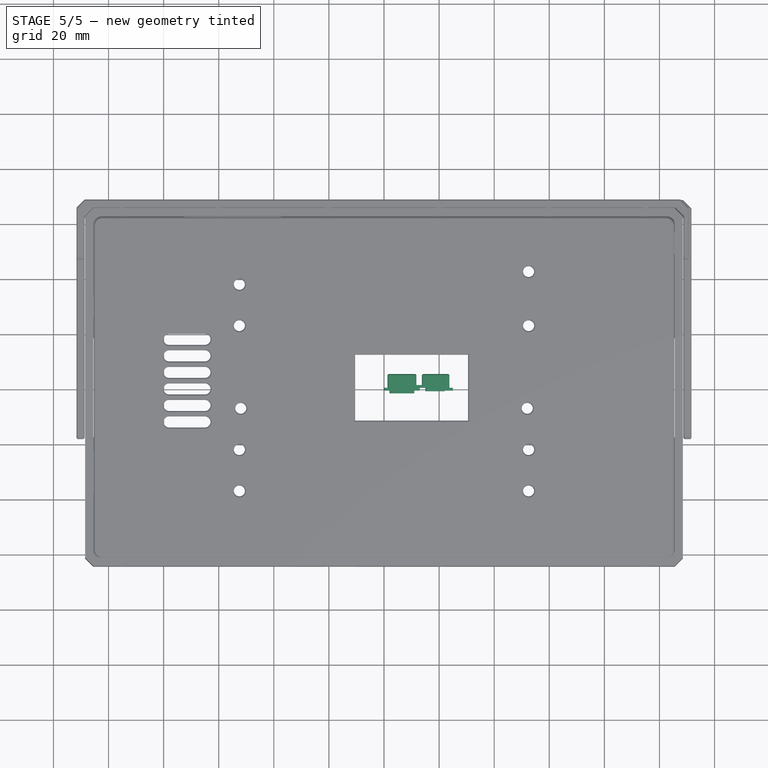
[diagram: stage 5 of 5 — top view after this stage's code; geometry added in this stage tinted green]
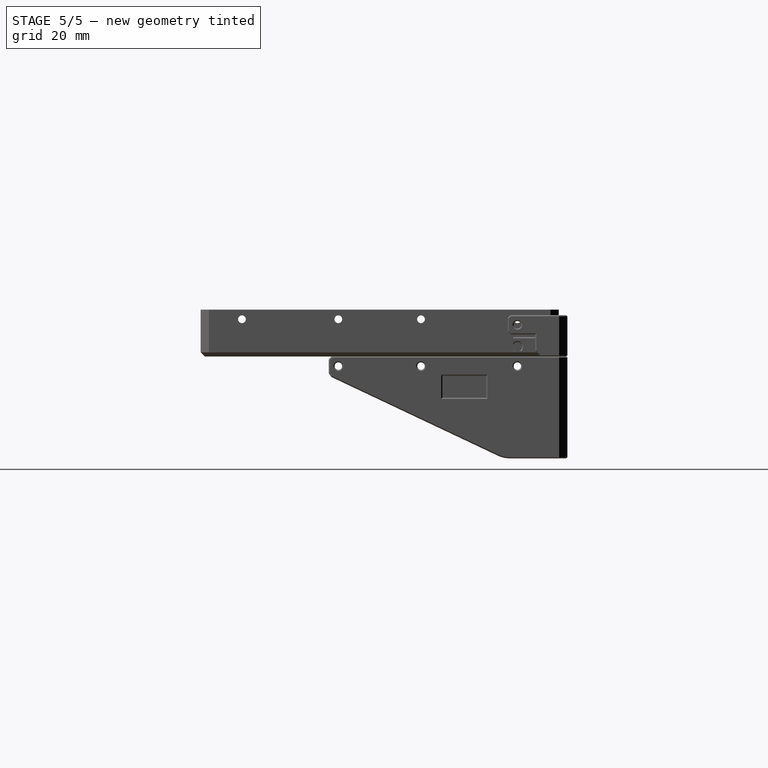
[diagram: stage 5 of 5 — right view after this stage's code; geometry added in this stage tinted green]
FEATURE [Spreadsheet::Sheet] Spreadsheet  label="args"
  cells = A1=case_front_thickness; B1(case_front_thickness)=2; A2=case_side_thickness; B2(case_side_thickness)=3; F2=tablet_width; G2(tablet_width)=211; A3=case_pocket_deep; B3(case_pocket_deep)=7; F3=tablet_height; G3(tablet_height)=124; A4=case_corner_chamfer; B4(case_corner_chamfer)=3; F4=tablet_thickness; G4(tablet_thickness)=8; F5=tablet_lr_bezel; G5(tablet_lr_bezel)=17; F6=tablet_tb_bezel; G6(tablet_tb_bezel)=4; F7=tablet_corner_radius; G7(tablet_corner_radius)=3; F8=tablet_front_radius; G8(tablet_front_radius)=2; A11=speaker_width; B11(speaker_width)=36; F11=visor_height; G11(visor_height)=20; A12=speaker_height; B12(speaker_height)=3
FEATURE [Sketcher::SketchObject] Sketch021
  FullyConstrained = true
  MapMode = 5
  Support = -> [XY_Plane009]
  sketch-geometry (12):
    g0: LineSegment StartX=0 StartY=0 StartZ=0 EndX=1.25 EndY=0 EndZ=0
    g1: LineSegment StartX=1.25 StartY=0 StartZ=0 EndX=1.25 EndY=5 EndZ=0
    g2: LineSegment StartX=1.25 StartY=5 StartZ=0 EndX=11.75 EndY=5 EndZ=0
    g3: LineSegment StartX=11.75 StartY=5 StartZ=0 EndX=11.75 EndY=0 EndZ=0
    g4: LineSegment StartX=11.75 StartY=0 StartZ=0 EndX=13 EndY=0 EndZ=0
    g5: LineSegment StartX=13 StartY=0 StartZ=0 EndX=13 EndY=-1 EndZ=0
    g6: LineSegment StartX=13 StartY=-1 StartZ=0 EndX=11 EndY=-1 EndZ=0
    g7: LineSegment StartX=11 StartY=-1 StartZ=0 EndX=11 EndY=-2 EndZ=0
    g8: LineSegment StartX=11 StartY=-2 StartZ=0 EndX=2 EndY=-2 EndZ=0
    g9: LineSegment StartX=2 StartY=-2 StartZ=0 EndX=2 EndY=-1 EndZ=0
    g10: LineSegment StartX=2 StartY=-1 StartZ=0 EndX=0 EndY=-1 EndZ=0
    g11: LineSegment StartX=0 StartY=-1 StartZ=0 EndX=0 EndY=0 EndZ=0
  constraints (35):
    c: Coincident(g-1,g0)
    c: PointOnObject(g0,g-1)
    c: Coincident(g0,g1)
    c: Vertical(g1)
    c: Coincident(g1,g2)
    c: Horizontal(g2)
    c: Coincident(g2,g3)
    c: PointOnObject(g3,g-1)
    c: Vertical(g3)
    c: Coincident(g3,g4)
    c: PointOnObject(g4,g-1)
    c: Coincident(g4,g5)
    c: Vertical(g5)
    c: Coincident(g5,g6)
    c: Horizontal(g6)
    c: Coincident(g6,g7)
    c: Vertical(g7)
    c: Coincident(g7,g8)
    c: Horizontal(g8)
    c: Coincident(g8,g9)
    c: Vertical(g9)
    c: Coincident(g9,g10)
    c: PointOnObject(g10,g-2)
    c: Horizontal(g10)
    c: Coincident(g10,g11)
    c: Coincident(g11,g0)
    c: DistanceX(g2,g2) = 10.5
    c: DistanceX(g0,g0) = 1.25
    c: DistanceX(g4,g4) = 1.25
    c: DistanceY(g11,g11) = 1
    c: DistanceY(g1,g1) = 5
    c: Horizontal(g9,g6)
    c: DistanceX(g10,g10) = 2
    c: DistanceX(g6,g6) = 2
    c: DistanceY(g9,g9) = 1
FEATURE [PartDesign::Pad] Pad003
  Direction = (1,1,1)
  Length = 2.75
  Length2 = 100
  Profile = -> Sketch021
  Type = 0
FEATURE [Sketcher::SketchObject] Sketch022
  FullyConstrained = true
  MapMode = 5
  Support = -> [XY_Plane010]
  sketch-geometry (20):
    g0: LineSegment StartX=0 StartY=0 StartZ=0 EndX=1.25 EndY=0 EndZ=0
    g1: LineSegment StartX=1.25 StartY=0 StartZ=0 EndX=1.25 EndY=5 EndZ=0
    g2: LineSegment StartX=1.25 StartY=5 StartZ=0 EndX=11.25 EndY=5 EndZ=0
    g3: LineSegment StartX=11.25 StartY=5 StartZ=0 EndX=11.25 EndY=1 EndZ=0
    g4: LineSegment StartX=11.25 StartY=1 StartZ=0 EndX=13.75 EndY=1 EndZ=0
    g5: LineSegment StartX=13.75 StartY=1 StartZ=0 EndX=13.75 EndY=5 EndZ=0
    g6: LineSegment StartX=13.75 StartY=5 StartZ=0 EndX=23.75 EndY=5 EndZ=0
    g7: LineSegment StartX=23.75 StartY=5 StartZ=0 EndX=23.75 EndY=0 EndZ=0
    g8: LineSegment StartX=23.75 StartY=0 StartZ=0 EndX=25 EndY=0 EndZ=0
    g9: LineSegment StartX=25 StartY=0 StartZ=0 EndX=25 EndY=-1 EndZ=0
    g10: LineSegment StartX=25 StartY=-1 StartZ=0 EndX=22 EndY=-1 EndZ=0
    g11: LineSegment StartX=22 StartY=-1 StartZ=0 EndX=22 EndY=-1.25 EndZ=0
    g12: LineSegment StartX=22 StartY=-1.25 StartZ=0 EndX=15 EndY=-1.25 EndZ=0
    g13: LineSegment StartX=15 StartY=-1.25 StartZ=0 EndX=15 EndY=0 EndZ=0
    g14: LineSegment StartX=15 StartY=0 StartZ=0 EndX=10 EndY=0 EndZ=0
    g15: LineSegment StartX=10 StartY=0 StartZ=0 EndX=10 EndY=-1.25 EndZ=0
    g16: LineSegment StartX=10 StartY=-1.25 StartZ=0 EndX=3 EndY=-1.25 EndZ=0
    g17: LineSegment StartX=3 StartY=-1.25 StartZ=0 EndX=3 EndY=-1 EndZ=0
    g18: LineSegment StartX=3 StartY=-1 StartZ=0 EndX=0 EndY=-1 EndZ=0
    g19: LineSegment StartX=0 StartY=-1 StartZ=0 EndX=0 EndY=0 EndZ=0
  constraints (59):
    c: Coincident(g-1,g0)
    c: PointOnObject(g0,g-1)
    c: Coincident(g0,g1)
    c: Vertical(g1)
    c: Coincident(g1,g2)
    c: Horizontal(g2)
    c: Coincident(g2,g3)
    c: Vertical(g3)
    c: Coincident(g3,g4)
    c: Horizontal(g4)
    c: Coincident(g4,g5)
    c: Vertical(g5)
    c: Coincident(g5,g6)
    c: Horizontal(g6)
    c: Coincident(g6,g7)
    c: PointOnObject(g7,g-1)
    c: Vertical(g7)
    c: Coincident(g7,g8)
    c: PointOnObject(g8,g-1)
    c: Coincident(g8,g9)
    c: Vertical(g9)
    c: Coincident(g9,g10)
    c: Horizontal(g10)
    c: Coincident(g10,g11)
    c: Vertical(g11)
    c: Coincident(g11,g12)
    c: Horizontal(g12)
    c: Coincident(g12,g13)
    c: PointOnObject(g13,g-1)
    c: Vertical(g13)
    c: Coincident(g13,g14)
    c: PointOnObject(g14,g-1)
    c: Coincident(g14,g15)
    c: Vertical(g15)
    c: Coincident(g15,g16)
    c: Horizontal(g16)
    c: Coincident(g16,g17)
    c: Vertical(g17)
    c: Coincident(g17,g18)
    c: PointOnObject(g18,g-2)
    c: Horizontal(g18)
    c: Coincident(g18,g19)
    c: Coincident(g19,g0)
    c: DistanceX(g1,g6) = 22.5
    c: DistanceX(g4,g4) = 2.5
    c: DistanceX(g2,g2) = 10
    c: DistanceY(g1,g1) = 5
    c: Horizontal(g2,g5)
    c: DistanceX(g0,g0) = 1.25
    c: DistanceX(g8,g8) = 1.25
    c: DistanceY(g0,g3) = 1
    c: DistanceY(g19,g19) = 1
    c: Horizontal(g9,g17)
    c: Horizontal(g15,g12)
    c: DistanceX(g18,g18) = 3
    c: DistanceX(g10,g10) = 3
    c: DistanceX(g16,g16) = 7
    c: DistanceX(g12,g12) = 7
    c: DistanceY(g17,g17) = 0.25
FEATURE [PartDesign::Pad] Pad004
  Direction = (1,1,1)
  Length = 2.75
  Length2 = 100
  Profile = -> Sketch022
  Type = 0
FEATURE [PartDesign::Chamfer] Chamfer016
  Angle = 45
  Base = -> Pad004 [Face3,Face7,Edge6,Edge7,Edge18,Edge19,Edge59,Edge60,Edge12,Edge13,Edge24,Edge25,Edge30,Edge31,Edge54,Edge48,Edge42,Edge36,Edge55,Edge49,Edge43,Edge37]
  BaseFeature = -> Pad004
  ChamferType = 0
  FlipDirection = false
  Size = 0.4
  Size2 = 1
  SupportTransform = false
FEATURE [PartDesign::Body] Body006007  label="volume-button"
  Group = -> [Sketch022,Pad004,Chamfer016]
  Origin = -> Origin010
  Placement = pos=(-58.5,-63,7.5) rot=(1,0,0;3.14159rad)
  Tip = -> Chamfer016
FEATURE [PartDesign::Chamfer] Chamfer011006
  Angle = 45
  Base = -> Pad003 [Face3,Edge12,Edge35,Edge6,Edge18,Edge30,Edge24,Edge31,Edge36,Edge7,Edge13,Edge19,Edge25]
  BaseFeature = -> Pad003
  ChamferType = 0
  FlipDirection = false
  Size = 0.4
  Size2 = 1
  SupportTransform = false
FEATURE [Sketcher::SketchObject] Sketch042
  FullyConstrained = true
  MapMode = 5
  Placement = pos=(0,56.85,1.26e-14) rot=(1,0,0;1.5708rad)
  Support = -> [DatumPlane009]
  expr: Constraints[10] = <<args>>.case_pocket_deep / 2
  sketch-geometry (6):
    g0: Circle CenterX=-95 CenterY=-3.5 CenterZ=0 NormalX=0 NormalY=0 NormalZ=1 AngleXU=0 Radius=1.35
    g1: Circle CenterX=-60 CenterY=-3.5 CenterZ=0 NormalX=0 NormalY=0 NormalZ=1 AngleXU=0 Radius=1.35
    g2: Circle CenterX=-20 CenterY=-3.5 CenterZ=0 NormalX=0 NormalY=0 NormalZ=1 AngleXU=0 Radius=1.35
    g3: Circle CenterX=20 CenterY=-3.5 CenterZ=0 NormalX=0 NormalY=0 NormalZ=1 AngleXU=0 Radius=1.35
    g4: Circle CenterX=60 CenterY=-3.5 CenterZ=0 NormalX=0 NormalY=0 NormalZ=1 AngleXU=0 Radius=1.35
    g5: Circle CenterX=95 CenterY=-3.5 CenterZ=0 NormalX=0 NormalY=0 NormalZ=1 AngleXU=0 Radius=1.35
  constraints (18):
    c: Equal(g0,g1)
    c: Equal(g1,g2)
    c: Equal(g2,g3)
    c: Equal(g3,g4)
    c: Equal(g4,g5)
    c: Horizontal(g0,g1)
    c: Horizontal(g1,g2)
    c: Horizontal(g2,g3)
    c: Horizontal(g3,g4)
    c: Horizontal(g4,g5)
    c: DistanceY(g2,g-1) = 3.5
    c: DistanceX(g2,g-1) = 20
    c: DistanceX(g-1,g3) = 20
    c: DistanceX(g3,g4) = 40
    c: DistanceX(g4,g5) = 35
    c: DistanceX(g1,g2) = 40
    c: DistanceX(g0,g1) = 35
    c: Radius(g0) = 1.35
FEATURE [PartDesign::Pocket] Pocket015
  BaseFeature = -> Pocket014
  Length = 5
  Length2 = 100
  Profile = -> Sketch042
  Type = 1
FEATURE [Sketcher::SketchObject] Sketch043
  FullyConstrained = true
  MapMode = 5
  Placement = pos=(0,0,0) rot=(0.57735,0.57735,0.57735;2.0944rad)
  Support = -> [YZ_Plane012]
  expr: Constraints[4] = <<args>>.case_pocket_deep / 2
  sketch-geometry (3):
    g0: Circle CenterX=-15 CenterY=-3.5 CenterZ=0 NormalX=0 NormalY=0 NormalZ=1 AngleXU=0 Radius=1.35
    g1: Circle CenterX=15 CenterY=-3.5 CenterZ=0 NormalX=0 NormalY=0 NormalZ=1 AngleXU=0 Radius=1.35
    g2: Circle CenterX=50 CenterY=-3.5 CenterZ=0 NormalX=0 NormalY=0 NormalZ=1 AngleXU=0 Radius=1.35
  constraints (9):
    c: Horizontal(g2,g1)
    c: Equal(g0,g1)
    c: Equal(g1,g2)
    c: Radius(g2) = 1.35
    c: DistanceY(g0,g-1) = 3.5
    c: Horizontal(g1,g0)
    c: DistanceX(g0,g-1) = 15
    c: DistanceX(g-1,g1) = 15
    c: DistanceX(g1,g2) = 35
FEATURE [PartDesign::Pocket] Pocket016
  BaseFeature = -> Pocket015
  Length = 5
  Length2 = 100
  Midplane = true
  Profile = -> Sketch043
  Type = 1
FEATURE [Sketcher::SketchObject] Sketch044
  FullyConstrained = true
  MapMode = 5
  Placement = pos=(0,0,0) rot=(0.57735,0.57735,0.57735;2.0944rad)
  Support = -> [YZ_Plane012]
  expr: Constraints[5] = <<args>>.tablet_thickness + <<args>>.case_front_thickness + <<args>>.case_pocket_deep + <<args>>.visor_height
  sketch-geometry (3):
    g0: LineSegment StartX=-18.5 StartY=-7 StartZ=0 EndX=45 EndY=-37 EndZ=0
    g1: LineSegment StartX=45 StartY=-37 StartZ=0 EndX=-18.5 EndY=-37 EndZ=0
    g2: LineSegment StartX=-18.5 StartY=-37 StartZ=0 EndX=-18.5 EndY=-7 EndZ=0
  constraints (9):
    c: Coincident(g0,g1)
    c: Horizontal(g1)
    c: Coincident(g1,g2)
    c: Coincident(g2,g0)
    c: Vertical(g2)
    c: DistanceY(g1,g-1) = 37
    c: DistanceX(g1,g-1) = 18.5
    c: DistanceY(g0,g-1) = 7
    c: DistanceX(g-1,g0) = 45
FEATURE [PartDesign::Pocket] Pocket017
  BaseFeature = -> Pocket016
  Length = 5
  Length2 = 100
  Midplane = true
  Profile = -> Sketch044
  Type = 1
FEATURE [PartDesign::Chamfer] Chamfer011014
  Angle = 45
  Base = -> Pocket017 [Edge32,Edge24]
  BaseFeature = -> Pocket017
  ChamferType = 0
  FlipDirection = false
  Size = 1
  Size2 = 1
  SupportTransform = false
FEATURE [PartDesign::Chamfer] Chamfer011015
  Angle = 45
  Base = -> Chamfer011014 [Edge91,Edge11]
  BaseFeature = -> Chamfer011014
  ChamferType = 0
  FlipDirection = false
  Size = 1
  Size2 = 1
  SupportTransform = false
FEATURE [PartDesign::Fillet] Fillet003
  Base = -> Chamfer011015 [Edge35,Edge18]
  BaseFeature = -> Chamfer011015
  Radius = 10
  SupportTransform = false
FEATURE [Sketcher::SketchObject] Sketch045
  FullyConstrained = true
  MapMode = 5
  Placement = pos=(0,0,0) rot=(0.57735,0.57735,0.57735;2.0944rad)
  Support = -> [YZ_Plane012]
  expr: Constraints[10] = <<args>>.case_pocket_deep
  sketch-geometry (4):
    g0: LineSegment StartX=22.75 StartY=-7 StartZ=0 EndX=38.75 EndY=-7 EndZ=0
    g1: LineSegment StartX=38.75 StartY=-7 StartZ=0 EndX=38.75 EndY=-15 EndZ=0
    g2: LineSegment StartX=38.75 StartY=-15 StartZ=0 EndX=22.75 EndY=-15 EndZ=0
    g3: LineSegment StartX=22.75 StartY=-15 StartZ=0 EndX=22.75 EndY=-7 EndZ=0
  constraints (12):
    c: Coincident(g0,g1)
    c: Coincident(g1,g2)
    c: Coincident(g2,g3)
    c: Coincident(g3,g0)
    c: Horizontal(g0)
    c: Horizontal(g2)
    c: Vertical(g1)
    c: Vertical(g3)
    c: DistanceX(g2,g2) = 16
    c: DistanceY(g3,g3) = 8
    c: DistanceY(g0,g-1) = 7
    c: DistanceX(g-1,g0) = 22.75
FEATURE [PartDesign::Pocket] Pocket018
  BaseFeature = -> Fillet003
  Length = 5
  Length2 = 100
  Profile = -> Sketch045
  Reversed = true
  Type = 1
FEATURE [PartDesign::Chamfer] Chamfer011020
  Angle = 45
  Base = -> Pocket018 [Edge86,Edge92,Edge108,Edge43,Edge87,Edge85,Edge109,Edge100,Edge99,Edge98,Edge83,Edge94,Edge106,Edge93,Edge107,Edge41,Edge97,Edge84,Edge28,Edge25,Edge23,Edge26,Edge24,Edge21,Edge22,Edge20,Edge19,Edge4,Edge2,Edge16,Edge14,Edge1,Edge3,Edge18,Edge5,Edge30,Edge47,Edge10,Edge49,Edge11,+49 more]
  BaseFeature = -> Pocket018
  ChamferType = 0
  FlipDirection = false
  Size = 0.4
  Size2 = 1
  SupportTransform = false
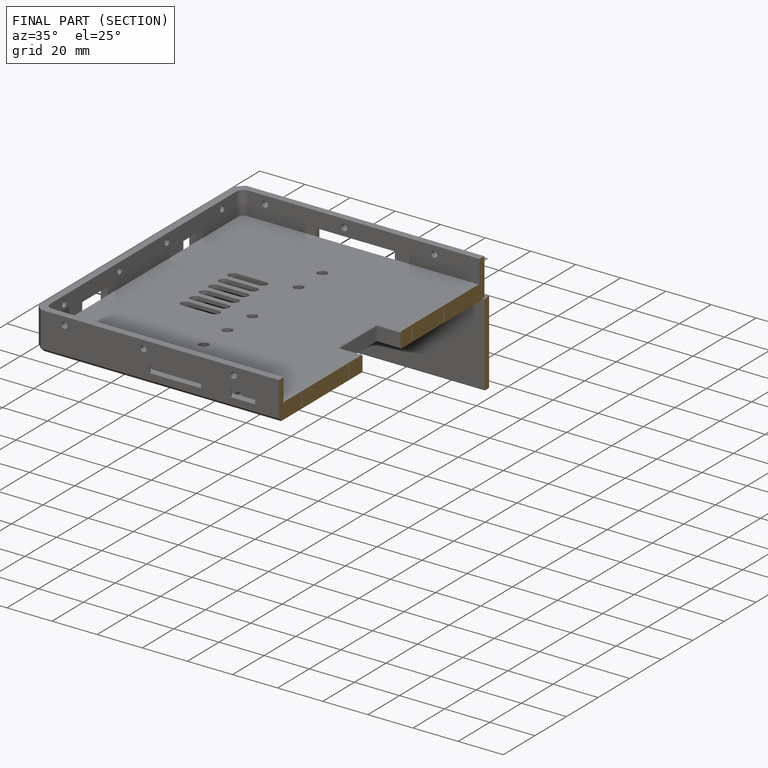
[diagram: finished part — half-section view (interior)]
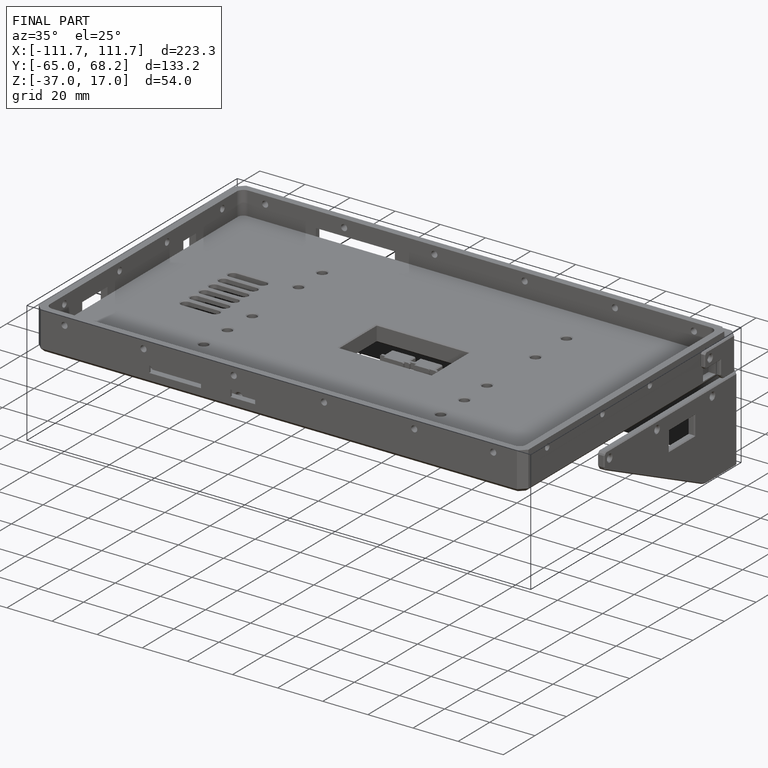
[diagram: finished part — iso view with bounding-box wireframe]
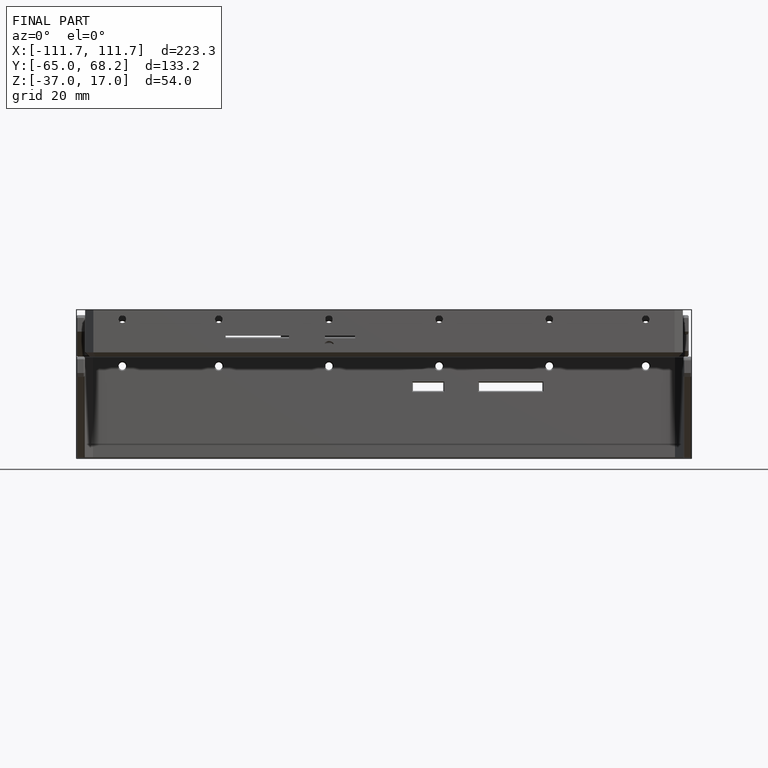
[diagram: finished part — front view with bounding-box wireframe]
